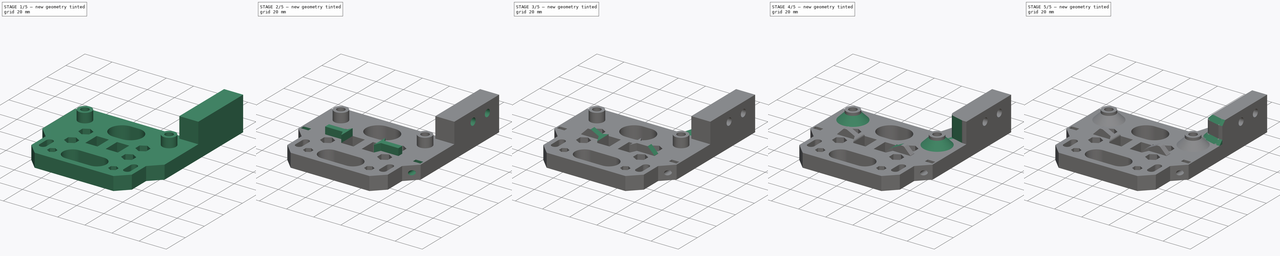
[diagram: build sequence overview — one tinted view per stage of 5, left to right]
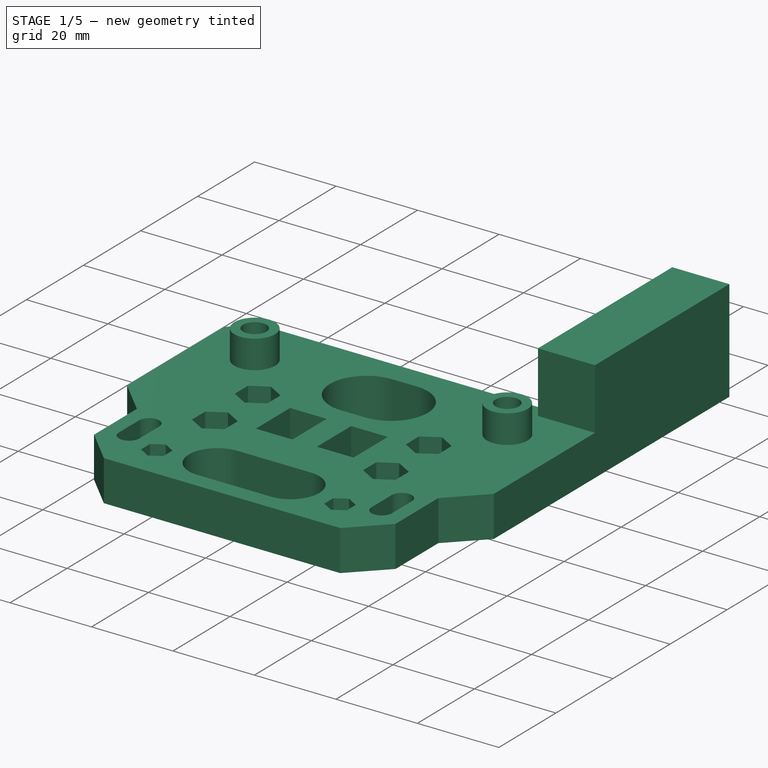
[diagram: stage 1 of 5 — iso view after this stage's code; geometry added in this stage tinted green]
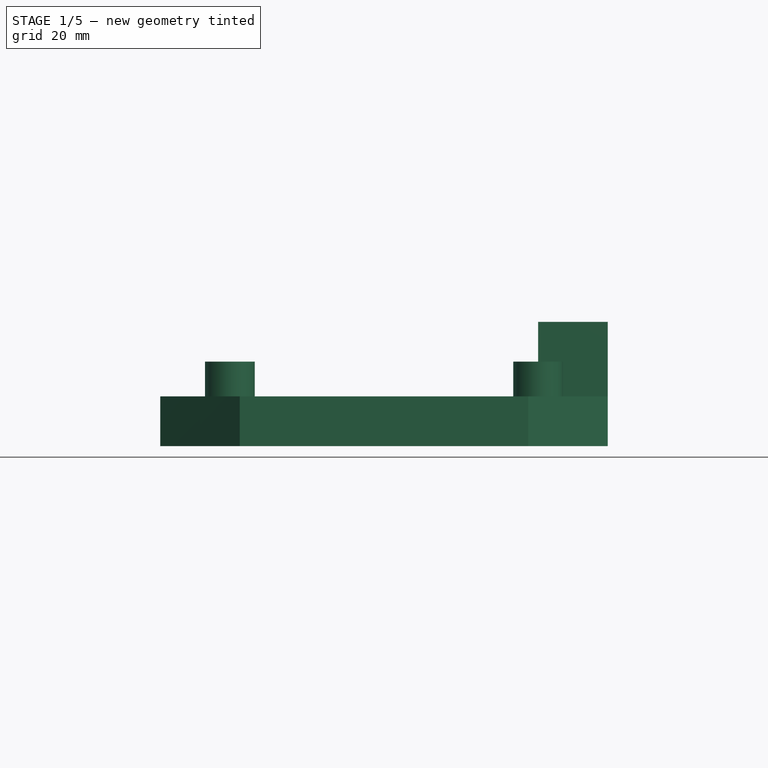
[diagram: stage 1 of 5 — front view after this stage's code; geometry added in this stage tinted green]
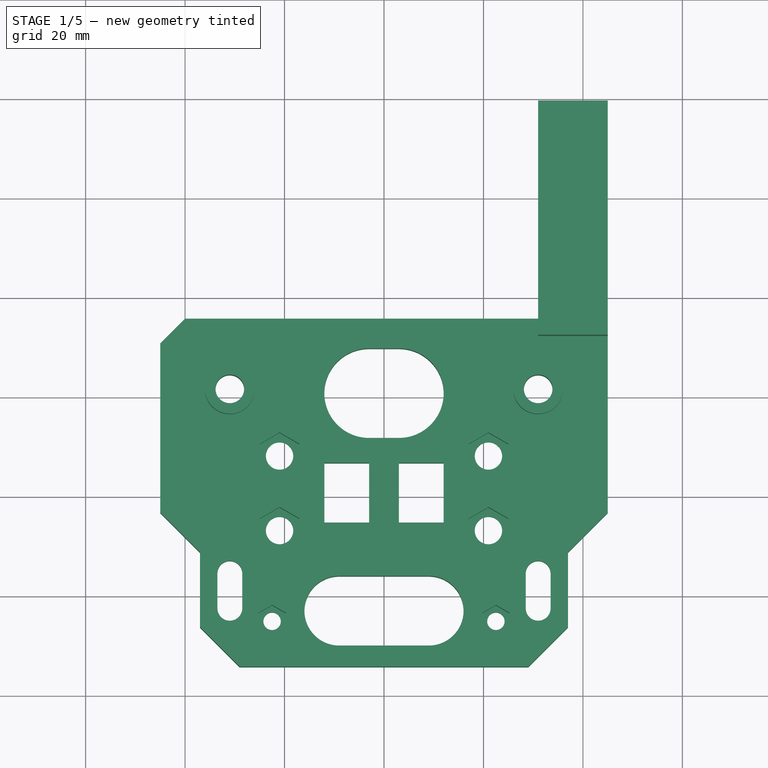
[diagram: stage 1 of 5 — top view after this stage's code; geometry added in this stage tinted green]
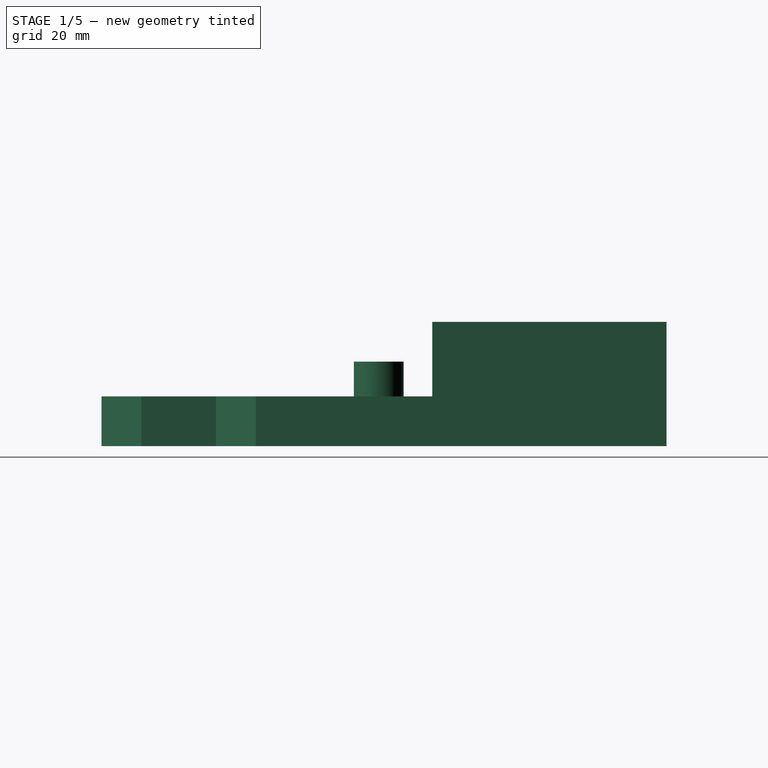
[diagram: stage 1 of 5 — right view after this stage's code; geometry added in this stage tinted green]
FCSTD DOCUMENT  (FreeCAD 0.19R24276 (Git))
Label: x-gantry-back
License: All rights reserved
LicenseURL: http://en.wikipedia.org/wiki/All_rights_reserved
objects: Sketcher::SketchObject×13, PartDesign::Plane×8, PartDesign::Chamfer×8, PartDesign::Pad×7, PartDesign::Pocket×5, PartDesign::Fillet×3, PartDesign::Hole×2, Part::Part2DObjectPython×1, PartDesign::Body×1
note: 73 computed .brp shape members not serialized (recipe doc carries the construction recipe); baked Part::Feature solids carry a one-line shape summary decoded from their .brp

FEATURE [Sketcher::SketchObject] Sketch016  label="Base001"
  FullyConstrained = true
  MapMode = 5
  Support = -> [XY_Plane001]
  expr: Constraints[150] = 39
  sketch-geometry (58):
    g0: LineSegment StartX=0 StartY=0 StartZ=0 EndX=0 EndY=41.5 EndZ=0
    g1: LineSegment StartX=-31 StartY=41.5 StartZ=0 EndX=31 EndY=41.5 EndZ=0
    g2: Circle CenterX=-31 CenterY=41.5 CenterZ=0 NormalX=0 NormalY=0 NormalZ=1 AngleXU=0 Radius=2.875
    g3: Circle CenterX=31 CenterY=41.5 CenterZ=0 NormalX=0 NormalY=0 NormalZ=1 AngleXU=0 Radius=2.875
    g4: ArcOfCircle CenterX=-31 CenterY=4.5 CenterZ=0 NormalX=0 NormalY=0 NormalZ=1 AngleXU=0 Radius=2.5 StartAngle=0 EndAngle=3.14159
    g5: ArcOfCircle CenterX=-31 CenterY=-2.5 CenterZ=0 NormalX=0 NormalY=0 NormalZ=1 AngleXU=0 Radius=2.5 StartAngle=3.14159 EndAngle=6.28319
    g6: LineSegment StartX=-33.5 StartY=4.5 StartZ=0 EndX=-33.5 EndY=-2.5 EndZ=0
    g7: LineSegment StartX=-28.5 StartY=4.5 StartZ=0 EndX=-28.5 EndY=-2.5 EndZ=0
    g8: Circle CenterX=-31 CenterY=41.5 CenterZ=0 NormalX=0 NormalY=0 NormalZ=1 AngleXU=0 Radius=12.5
    g9: Circle CenterX=31 CenterY=41.5 CenterZ=0 NormalX=0 NormalY=0 NormalZ=1 AngleXU=0 Radius=12.5
    g10: LineSegment StartX=45 StartY=55.75 StartZ=0 EndX=45 EndY=16.75 EndZ=0
    g11: LineSegment StartX=-45 StartY=16.75 StartZ=0 EndX=-45 EndY=50.75 EndZ=0
    g12: LineSegment StartX=-21 StartY=28.25 StartZ=0 EndX=-21 EndY=13.25 EndZ=0
    g13: LineSegment StartX=-12 StartY=26.75 StartZ=0 EndX=-3 EndY=26.75 EndZ=0
    g14: LineSegment StartX=-3 StartY=26.75 StartZ=0 EndX=-3 EndY=14.75 EndZ=0
    g15: LineSegment StartX=-3 StartY=14.75 StartZ=0 EndX=-12 EndY=14.75 EndZ=0
    g16: LineSegment StartX=-12 StartY=14.75 StartZ=0 EndX=-12 EndY=26.75 EndZ=0
    g17: Circle CenterX=-21 CenterY=28.25 CenterZ=0 NormalX=0 NormalY=0 NormalZ=1 AngleXU=0 Radius=2.75
    g18: Circle CenterX=-21 CenterY=13.25 CenterZ=0 NormalX=0 NormalY=0 NormalZ=1 AngleXU=0 Radius=2.75
    g19: LineSegment StartX=-21 StartY=20.75 StartZ=0 EndX=21 EndY=20.75 EndZ=0
    g20: LineSegment StartX=21 StartY=28.25 StartZ=0 EndX=21 EndY=13.25 EndZ=0
    g21: Circle CenterX=21 CenterY=28.25 CenterZ=0 NormalX=0 NormalY=0 NormalZ=1 AngleXU=0 Radius=2.75
    g22: Circle CenterX=21 CenterY=13.25 CenterZ=0 NormalX=0 NormalY=0 NormalZ=1 AngleXU=0 Radius=2.75
    g23: LineSegment StartX=3 StartY=26.75 StartZ=0 EndX=12 EndY=26.75 EndZ=0
    g24: LineSegment StartX=12 StartY=26.75 StartZ=0 EndX=12 EndY=14.75 EndZ=0
    g25: LineSegment StartX=12 StartY=14.75 StartZ=0 EndX=3 EndY=14.75 EndZ=0
    g26: LineSegment StartX=3 StartY=14.75 StartZ=0 EndX=3 EndY=26.75 EndZ=0
    g27: LineSegment StartX=-22.5 StartY=-5 StartZ=0 EndX=22.5 EndY=-5 EndZ=0
    g28: Circle CenterX=-22.5 CenterY=-5 CenterZ=0 NormalX=0 NormalY=0 NormalZ=1 AngleXU=0 Radius=1.75
    g29: Circle CenterX=22.5 CenterY=-5 CenterZ=0 NormalX=0 NormalY=0 NormalZ=1 AngleXU=0 Radius=1.75
    g30: ArcOfCircle CenterX=31 CenterY=4.5 CenterZ=0 NormalX=0 NormalY=0 NormalZ=1 AngleXU=0 Radius=2.5 StartAngle=0 EndAngle=3.14159
    g31: ArcOfCircle CenterX=31 CenterY=-2.5 CenterZ=0 NormalX=0 NormalY=0 NormalZ=1 AngleXU=0 Radius=2.5 StartAngle=3.14159 EndAngle=6.28319
    g32: LineSegment StartX=28.5 StartY=4.5 StartZ=0 EndX=28.5 EndY=-2.5 EndZ=0
    g33: LineSegment StartX=33.5 StartY=4.5 StartZ=0 EndX=33.5 EndY=-2.5 EndZ=0
    g34: LineSegment StartX=37 StartY=8.75 StartZ=0 EndX=37 EndY=-6.25 EndZ=0
    g35: LineSegment StartX=37 StartY=-6.25 StartZ=0 EndX=29 EndY=-14.25 EndZ=0
    g36: LineSegment StartX=-29 StartY=-14.25 StartZ=0 EndX=-37 EndY=-6.25 EndZ=0
    g37: LineSegment StartX=-37 StartY=-6.25 StartZ=0 EndX=-37 EndY=8.75 EndZ=0
    g38: LineSegment StartX=-37 StartY=8.75 StartZ=0 EndX=-45 EndY=16.75 EndZ=0
    g39: LineSegment StartX=37 StartY=8.75 StartZ=0 EndX=45 EndY=16.75 EndZ=0
    g40: LineSegment StartX=-29 StartY=-14.25 StartZ=0 EndX=29 EndY=-14.25 EndZ=0
    g41: ArcOfCircle CenterX=-9 CenterY=-3 CenterZ=0 NormalX=0 NormalY=0 NormalZ=1 AngleXU=0 Radius=7 StartAngle=1.5708 EndAngle=4.71239
    g42: ArcOfCircle CenterX=9 CenterY=-3 CenterZ=0 NormalX=0 NormalY=0 NormalZ=1 AngleXU=0 Radius=7 StartAngle=4.71239 EndAngle=7.85398
    g43: LineSegment StartX=-9 StartY=-10 StartZ=0 EndX=9 EndY=-10 EndZ=0
    g44: LineSegment StartX=-9 StartY=4 StartZ=0 EndX=9 EndY=4 EndZ=0
    g45: ArcOfCircle CenterX=-3 CenterY=40.75 CenterZ=0 NormalX=0 NormalY=0 NormalZ=1 AngleXU=0 Radius=9 StartAngle=1.5708 EndAngle=4.71239
    g46: ArcOfCircle CenterX=3 CenterY=40.75 CenterZ=0 NormalX=0 NormalY=0 NormalZ=1 AngleXU=0 Radius=9 StartAngle=4.71239 EndAngle=7.85398
    g47: LineSegment StartX=-3 StartY=31.75 StartZ=0 EndX=3 EndY=31.75 EndZ=0
    g48: LineSegment StartX=-3 StartY=49.75 StartZ=0 EndX=3 EndY=49.75 EndZ=0
    g49: LineSegment StartX=31 StartY=55.75 StartZ=0 EndX=31 EndY=65.75 EndZ=0
    g50: LineSegment StartX=31 StartY=65.75 StartZ=0 EndX=31 EndY=99.35 EndZ=0
    g51: LineSegment StartX=31 StartY=99.35 StartZ=0 EndX=45 EndY=99.35 EndZ=0
    g52: LineSegment StartX=45 StartY=99.35 StartZ=0 EndX=45 EndY=65.75 EndZ=0
    g53: LineSegment StartX=45 StartY=65.75 StartZ=0 EndX=45 EndY=55.75 EndZ=0
    g54: LineSegment StartX=31 StartY=55.75 StartZ=0 EndX=-40 EndY=55.75 EndZ=0
    g55: LineSegment StartX=-45 StartY=50.75 StartZ=0 EndX=-40 EndY=55.75 EndZ=0
    g56: LineSegment StartX=-45 StartY=50.75 StartZ=0 EndX=-45 EndY=55.75 EndZ=0
    g57: LineSegment StartX=-45 StartY=55.75 StartZ=0 EndX=-40 EndY=55.75 EndZ=0
  constraints (151):
    c: Coincident(g0,g-1)
    c: PointOnObject(g0,g1)
    c: Symmetric(g1,g1,g0)
    c: DistanceY(g0,g0) = 41.5
    c: DistanceX(g1,g1) = 62
    c: Coincident(g2,g1)
    c: Coincident(g3,g1)
    c: Tangent(g4,g7)
    c: Tangent(g4,g6)
    c: Tangent(g6,g5)
    c: Tangent(g7,g5)
    c: Vertical(g6)
    c: Coincident(g8,g2)
    c: Coincident(g9,g3)
    c: Diameter(g4) = 5
    c: DistanceY(g5,g4) = 7
    c: Diameter(g3) = 5.75
    c: Diameter(g2) = 5.75
    c: Diameter(g9) = 25
    c: Diameter(g8) = 25
    c: Vertical(g10)
    c: Vertical(g11)
    c: Symmetric(g56,g10,g-2)
    c: DistanceX(g56,g10) = 90
    c: DistanceY(g3,g10) = 14.25
    c: DistanceY(g12,g12) = 15
    c: Coincident(g13,g14)
    c: Coincident(g14,g15)
    c: Coincident(g15,g16)
    c: Coincident(g16,g13)
    c: Horizontal(g13)
    c: Horizontal(g15)
    c: Vertical(g14)
    c: DistanceX(g13,g13) = 9
    c: DistanceY(g16,g16) = 12
    c: Coincident(g17,g12)
    c: Coincident(g18,g12)
    c: Diameter(g17) = 5.5
    c: Diameter(g18) = 5.5
    c: PointOnObject(g19,g12)
    c: Symmetric(g19,g19,g-2)
    c: Symmetric(g17,g18,g19)
    c: Symmetric(g13,g15,g19)
    c: PointOnObject(g19,g20)
    c: Symmetric(g20,g20,g19)
    c: DistanceY(g20,g20) = 15
    c: Coincident(g22,g20)
    c: Diameter(g21) = 5.5
    c: Diameter(g22) = 5.5
    c: Symmetric(g0,g-1,g19)
    c: Distance(g13,g0) = 3
    c: Distance(g17,g0) = 21
    c: Coincident(g23,g24)
    c: Coincident(g24,g25)
    c: Coincident(g25,g26)
    c: Coincident(g26,g23)
    c: Horizontal(g23)
    c: Horizontal(g25)
    c: Vertical(g24)
    c: DistanceX(g23,g23) = 9
    c: DistanceY(g26,g26) = 12
    c: DistanceX(g-1,g23) = 3
    c: Symmetric(g23,g25,g19)
    c: Symmetric(g27,g27,g-2)
    c: DistanceY(g27,g-1) = 5
    c: DistanceX(g27,g27) = 45
    c: Coincident(g28,g27)
    c: Coincident(g29,g27)
    c: Diameter(g29) = 3.5
    c: DistanceY(g0,g4) = 4.5
    c: Vertical(g5,g4)
    c: Vertical(g4,g2)
    c: Tangent(g30,g33)
    c: Tangent(g30,g32)
    c: Tangent(g32,g31)
    c: Tangent(g33,g31)
    c: Vertical(g32)
    c: Equal(g4,g30) = 5
    c: Vertical(g31,g30)
    c: Horizontal(g30,g4)
    c: Vertical(g30,g3)
    c: Horizontal(g31,g5)
    c: Vertical(g34)
    c: Coincident(g35,g34)
    c: Coincident(g37,g36)
    c: Vertical(g37)
    c: Coincident(g38,g37)
    c: Coincident(g39,g34)
    c: Horizontal(g39,g38)
    c: Horizontal(g34,g37)
    c: DistanceX(g37,g34) = 74
    c: DistanceY(g35,g53) = 70
    c: Coincident(g40,g36)
    c: Coincident(g40,g35)
    c: Horizontal(g40)
    c: Angle(g34,g35) = 2.35619
    c: Angle(g36,g37) = 2.35619
    c: Horizontal(g36,g34)
    c: Coincident(g38,g11)
    c: Angle(g38,g11) = 2.35619
    c: DistanceY(g35,g34) = 8
    c: DistanceY(g34,g34) = 15
    c: Equal(g28,g29)
    c: Tangent(g41,g44) = 1.5708
    c: Tangent(g41,g43) = -1.5708
    c: Tangent(g43,g42) = -1.5708
    c: Tangent(g44,g42) = 1.5708
    c: Horizontal(g43)
    c: Symmetric(g41,g42,g0)
    c: Diameter(g42) = 14
    c: DistanceX(g44,g44) = 18
    c: DistanceY(g42,g0) = 3
    c: Vertical(g21,g22)
    c: Horizontal(g21,g17)
    c: Tangent(g45,g48) = 1.5708
    c: Tangent(g45,g47) = -1.5708
    c: Tangent(g47,g46) = -1.5708
    c: Tangent(g48,g46) = 1.5708
    c: Horizontal(g47)
    c: Symmetric(g45,g46,g-2)
    c: Vertical(g13,g45)
    c: Radius(g46) = 9
    c: DistanceY(g46,g53) = 6
    c: Coincident(g50,g49)
    c: Coincident(g51,g50)
    c: Coincident(g52,g51)
    c: Coincident(g53,g52)
    c: Vertical(g53)
    c: Distance(g51) = 14
    c: Perpendicular(g51,g50)
    c: Angle(g49,g50) = 3.14159
    c: Parallel(g52,g50)
    c: DistanceY(g53,g53) = 10
    c: Horizontal(g54)
    c: Vertical(g49)
    c: Coincident(g49,g54)
    c: DistanceY(g49,g50) = 43.6
    c: Horizontal(g49,g52)
    c: DistanceX(g56,g55) = 5
    c: DistanceY(g55,g56) = 5
    c: Coincident(g11,g55)
    c: Coincident(g56,g11)
    c: Vertical(g56)
    c: Coincident(g54,g55)
    c: Coincident(g57,g56)
    c: Coincident(g57,g54)
    c: Horizontal(g57)
    c: DistanceX(g54,g49) = 71
    c: DistanceY(g11,g11) = 34
    c: Coincident(g10,g39)
    c: DistanceY(g10,g53) = 39
FEATURE [PartDesign::Pad] Pad004
  AllowMultiFace = false
  Direction = (1,1,1)
  Length = 10
  Length2 = 100
  Profile = -> Sketch016
  Refine = true
  Type = 0
FEATURE [PartDesign::Plane] DatumPlane008
  Length = 111.158
  MapMode = 5
  Placement = pos=(0,0,10) rot=(0,0,1;0rad)
  ResizeMode = 0
  Support = -> [Pad004]
  Width = 145.508
FEATURE [Sketcher::SketchObject] Sketch017  label="WheelSpacers001"
  FullyConstrained = true
  MapMode = 5
  Placement = pos=(0,0,10) rot=(0,0,1;0rad)
  Support = -> [DatumPlane008]
  sketch-geometry (4):
    g0: Circle CenterX=-31 CenterY=41.5 CenterZ=0 NormalX=0 NormalY=0 NormalZ=1 AngleXU=0 Radius=2.875
    g1: Circle CenterX=-31 CenterY=41.5 CenterZ=0 NormalX=0 NormalY=0 NormalZ=1 AngleXU=0 Radius=5
    g2: Circle CenterX=31 CenterY=41.5 CenterZ=0 NormalX=0 NormalY=0 NormalZ=1 AngleXU=0 Radius=2.875
    g3: Circle CenterX=31 CenterY=41.5 CenterZ=0 NormalX=0 NormalY=0 NormalZ=1 AngleXU=0 Radius=5
  constraints (10):
    c: Coincident(g1,g0)
    c: Coincident(g3,g2)
    c: Diameter(g2) = 5.75
    c: Diameter(g3) = 10
    c: Diameter(g0) = 5.75
    c: Diameter(g1) = 10
    c: DistanceX(g0,g-1) = 31
    c: DistanceX(g-1,g2) = 31
    c: DistanceY(g-1,g0) = 41.5
    c: DistanceY(g-1,g2) = 41.5
FEATURE [PartDesign::Pad] Pad005
  AllowMultiFace = false
  BaseFeature = -> Pad004
  Direction = (1,1,1)
  Length = 7
  Length2 = 100
  Profile = -> Sketch017
  Refine = true
  Type = 0
FEATURE [Sketcher::SketchObject] Sketch018  label="M5Nuts001"
  FullyConstrained = true
  MapMode = 5
  Placement = pos=(0,0,10) rot=(0,0,1;0rad)
  Support = -> [DatumPlane008]
  sketch-geometry (42):
    g0: LineSegment StartX=-17 StartY=25.9406 StartZ=0 EndX=-17 EndY=30.5594 EndZ=0
    g1: LineSegment StartX=-17 StartY=30.5594 StartZ=0 EndX=-21 EndY=32.8688 EndZ=0
    g2: LineSegment StartX=-21 StartY=32.8688 StartZ=0 EndX=-25 EndY=30.5594 EndZ=0
    g3: LineSegment StartX=-25 StartY=30.5594 StartZ=0 EndX=-25 EndY=25.9406 EndZ=0
    g4: LineSegment StartX=-25 StartY=25.9406 StartZ=0 EndX=-21 EndY=23.6312 EndZ=0
    g5: LineSegment StartX=-21 StartY=23.6312 StartZ=0 EndX=-17 EndY=25.9406 EndZ=0
    g6: Circle CenterX=-21 CenterY=28.25 CenterZ=0 NormalX=0 NormalY=0 NormalZ=1 AngleXU=0 Radius=4.6188
    g7: LineSegment StartX=-17 StartY=10.9406 StartZ=0 EndX=-17 EndY=15.5594 EndZ=0
    g8: LineSegment StartX=-17 StartY=15.5594 StartZ=0 EndX=-21 EndY=17.8688 EndZ=0
    g9: LineSegment StartX=-21 StartY=17.8688 StartZ=0 EndX=-25 EndY=15.5594 EndZ=0
    g10: LineSegment StartX=-25 StartY=15.5594 StartZ=0 EndX=-25 EndY=10.9406 EndZ=0
    g11: LineSegment StartX=-25 StartY=10.9406 StartZ=0 EndX=-21 EndY=8.6312 EndZ=0
    g12: LineSegment StartX=-21 StartY=8.6312 StartZ=0 EndX=-17 EndY=10.9406 EndZ=0
    g13: Circle CenterX=-21 CenterY=13.25 CenterZ=0 NormalX=0 NormalY=0 NormalZ=1 AngleXU=0 Radius=4.6188
    g14: LineSegment StartX=-19.75 StartY=-6.58771 StartZ=0 EndX=-19.75 EndY=-3.41229 EndZ=0
    g15: LineSegment StartX=-19.75 StartY=-3.41229 StartZ=0 EndX=-22.5 EndY=-1.82457 EndZ=0
    g16: LineSegment StartX=-22.5 StartY=-1.82457 StartZ=0 EndX=-25.25 EndY=-3.41229 EndZ=0
    g17: LineSegment StartX=-25.25 StartY=-3.41229 StartZ=0 EndX=-25.25 EndY=-6.58771 EndZ=0
    g18: LineSegment StartX=-25.25 StartY=-6.58771 StartZ=0 EndX=-22.5 EndY=-8.17543 EndZ=0
    g19: LineSegment StartX=-22.5 StartY=-8.17543 StartZ=0 EndX=-19.75 EndY=-6.58771 EndZ=0
    g20: Circle CenterX=-22.5 CenterY=-5 CenterZ=0 NormalX=0 NormalY=0 NormalZ=1 AngleXU=0 Radius=3.17543
    g21: LineSegment StartX=25.25 StartY=-6.58771 StartZ=0 EndX=25.25 EndY=-3.41229 EndZ=0
    g22: LineSegment StartX=25.25 StartY=-3.41229 StartZ=0 EndX=22.5 EndY=-1.82457 EndZ=0
    g23: LineSegment StartX=22.5 StartY=-1.82457 StartZ=0 EndX=19.75 EndY=-3.41229 EndZ=0
    g24: LineSegment StartX=19.75 StartY=-3.41229 StartZ=0 EndX=19.75 EndY=-6.58771 EndZ=0
    g25: LineSegment StartX=19.75 StartY=-6.58771 StartZ=0 EndX=22.5 EndY=-8.17543 EndZ=0
    g26: LineSegment StartX=22.5 StartY=-8.17543 StartZ=0 EndX=25.25 EndY=-6.58771 EndZ=0
    g27: Circle CenterX=22.5 CenterY=-5 CenterZ=0 NormalX=0 NormalY=0 NormalZ=1 AngleXU=0 Radius=3.17543
    g28: LineSegment StartX=25 StartY=10.9406 StartZ=0 EndX=25 EndY=15.5594 EndZ=0
    g29: LineSegment StartX=25 StartY=15.5594 StartZ=0 EndX=21 EndY=17.8688 EndZ=0
    g30: LineSegment StartX=21 StartY=17.8688 StartZ=0 EndX=17 EndY=15.5594 EndZ=0
    g31: LineSegment StartX=17 StartY=15.5594 StartZ=0 EndX=17 EndY=10.9406 EndZ=0
    g32: LineSegment StartX=17 StartY=10.9406 StartZ=0 EndX=21 EndY=8.6312 EndZ=0
    g33: LineSegment StartX=21 StartY=8.6312 StartZ=0 EndX=25 EndY=10.9406 EndZ=0
    g34: Circle CenterX=21 CenterY=13.25 CenterZ=0 NormalX=0 NormalY=0 NormalZ=1 AngleXU=0 Radius=4.6188
    g35: LineSegment StartX=25 StartY=25.9406 StartZ=0 EndX=25 EndY=30.5594 EndZ=0
    g36: LineSegment StartX=25 StartY=30.5594 StartZ=0 EndX=21 EndY=32.8688 EndZ=0
    g37: LineSegment StartX=21 StartY=32.8688 StartZ=0 EndX=17 EndY=30.5594 EndZ=0
    g38: LineSegment StartX=17 StartY=30.5594 StartZ=0 EndX=17 EndY=25.9406 EndZ=0
    g39: LineSegment StartX=17 StartY=25.9406 StartZ=0 EndX=21 EndY=23.6312 EndZ=0
    g40: LineSegment StartX=21 StartY=23.6312 StartZ=0 EndX=25 EndY=25.9406 EndZ=0
    g41: Circle CenterX=21 CenterY=28.25 CenterZ=0 NormalX=0 NormalY=0 NormalZ=1 AngleXU=0 Radius=4.6188
  constraints (102):
    c: Coincident(g0,g1)
    c: Coincident(g1,g2)
    c: Coincident(g2,g3)
    c: Coincident(g3,g4)
    c: Coincident(g4,g5)
    c: Coincident(g5,g0)
    c: Equal(g0, g1-g5) x5
    c: PointOnObject(g0,g6)
    c: PointOnObject(g1,g6)
    c: PointOnObject(g2,g6)
    c: PointOnObject(g3,g6)
    c: PointOnObject(g4,g6)
    c: PointOnObject(g5,g6)
    c: Coincident(g7,g8)
    c: Coincident(g8,g9)
    c: Coincident(g9,g10)
    c: Coincident(g10,g11)
    c: Coincident(g11,g12)
    c: Coincident(g12,g7)
    c: Equal(g7, g8-g12) x5
    c: PointOnObject(g7,g13)
    c: PointOnObject(g8,g13)
    c: PointOnObject(g9,g13)
    c: PointOnObject(g10,g13)
    c: PointOnObject(g11,g13)
    c: PointOnObject(g12,g13)
    c: Coincident(g14,g15)
    c: Coincident(g15,g16)
    c: Coincident(g16,g17)
    c: Coincident(g17,g18)
    c: Coincident(g18,g19)
    c: Coincident(g19,g14)
    c: Equal(g14, g15-g19) x5
    c: PointOnObject(g14,g20)
    c: PointOnObject(g15,g20)
    c: PointOnObject(g16,g20)
    c: PointOnObject(g17,g20)
    c: PointOnObject(g18,g20)
    c: PointOnObject(g19,g20)
    c: Coincident(g21,g22)
    c: Coincident(g22,g23)
    c: Coincident(g23,g24)
    c: Coincident(g24,g25)
    c: Coincident(g25,g26)
    c: Coincident(g26,g21)
    c: Equal(g21, g22-g26) x5
    c: PointOnObject(g21,g27)
    c: PointOnObject(g22,g27)
    c: PointOnObject(g23,g27)
    c: PointOnObject(g24,g27)
    c: PointOnObject(g25,g27)
    c: PointOnObject(g26,g27)
    c: Coincident(g28,g29)
    c: Coincident(g29,g30)
    c: Coincident(g30,g31)
    c: Coincident(g31,g32)
    c: Coincident(g32,g33)
    c: Coincident(g33,g28)
    c: Equal(g28, g29-g33) x5
    c: PointOnObject(g28,g34)
    c: PointOnObject(g29,g34)
    c: PointOnObject(g30,g34)
    c: PointOnObject(g31,g34)
    c: PointOnObject(g32,g34)
    c: PointOnObject(g33,g34)
    c: Coincident(g35,g36)
    c: Coincident(g36,g37)
    c: Coincident(g37,g38)
    c: Coincident(g38,g39)
    c: Coincident(g39,g40)
    c: Coincident(g40,g35)
    c: Equal(g35, g36-g40) x5
    c: PointOnObject(g35,g41)
    c: PointOnObject(g36,g41)
    c: PointOnObject(g37,g41)
    c: PointOnObject(g38,g41)
    c: PointOnObject(g39,g41)
    c: PointOnObject(g40,g41)
    c: Vertical(g10)
    c: Vertical(g3)
    c: Vertical(g17)
    c: Vertical(g24)
    c: Vertical(g31)
    c: Vertical(g38)
    c: DistanceX(g20,g-1) = 22.5
    c: DistanceX(g-1,g27) = 22.5
    c: DistanceX(g-1,g34) = 21
    c: DistanceX(g-1,g41) = 21
    c: DistanceX(g13,g-1) = 21
    c: DistanceX(g6,g-1) = 21
    c: DistanceY(g-1,g13) = 13.25
    c: DistanceY(g-1,g34) = 13.25
    c: DistanceY(g-1,g41) = 28.25
    c: DistanceY(g-1,g6) = 28.25
    c: DistanceY(g20,g-1) = 5
    c: DistanceY(g27,g-1) = 5
    c: DistanceX(g2,g0) = 8
    c: Equal(g6,g13)
    c: Equal(g13,g34)
    c: Equal(g34,g41)
    c: DistanceX(g17,g14) = 5.5
    c: Equal(g20,g27)
FEATURE [PartDesign::Pocket] Pocket010  label="Topside M5 Nut Pockets"
  AllowMultiFace = false
  BaseFeature = -> Pad005
  Length = 7.5
  Length2 = 100
  Profile = -> Sketch018
  Refine = true
  Type = 0
FEATURE [Sketcher::SketchObject] Sketch013  label="CableSupport001"
  ExternalGeometry = -> [Pocket010]
  FullyConstrained = true
  MapMode = 5
  Placement = pos=(0,0,10) rot=(0,0,1;0rad)
  Support = -> [DatumPlane008]
  sketch-geometry (4):
    g0: LineSegment StartX=45 StartY=99.35 StartZ=0 EndX=45 EndY=52.25 EndZ=0
    g1: LineSegment StartX=45 StartY=52.25 StartZ=0 EndX=31 EndY=52.25 EndZ=0
    g2: LineSegment StartX=31 StartY=52.25 StartZ=0 EndX=31 EndY=99.35 EndZ=0
    g3: LineSegment StartX=31 StartY=99.35 StartZ=0 EndX=45 EndY=99.35 EndZ=0
  constraints (10):
    c: Coincident(g0,g1)
    c: Coincident(g1,g2)
    c: Horizontal(g1)
    c: Vertical(g0)
    c: Vertical(g2)
    c: Coincident(g0,g3)
    c: Coincident(g3,g2)
    c: Coincident(g2,g-4)
    c: DistanceY(g1,g-5) = 3.5
    c: Coincident(g0,g-4)
FEATURE [PartDesign::Plane] DatumPlane009  label="PartNumberPlane001"
  Length = 140.12
  MapMode = 5
  Placement = pos=(0,0,0) rot=(0.57735,0.57735,0.57735;2.0944rad)
  ResizeMode = 0
  Support = -> [YZ_Plane001]
  Width = 65.7702
FEATURE [Part::Part2DObjectPython] ShapeString002  label="PN001"  # Draft 2D object (typed FeaturePython)
  AttachmentOffset = pos=(56,3,18) rot=(0,1,0;1.5708rad)
  FontFile = ../../lib/fonts/RobotoMono-VariableFont_weight.ttf
  MapMode = 5
  Placement = pos=(18,56,3) rot=(0,0.707107,0.707107;3.14159rad)
  Size = 5
  String = FDM-0012-03
  Support = -> [YZ_Plane001]
  Tracking = 0
FEATURE [Sketcher::SketchObject] Sketch019  label="Verticalholes001"
  FullyConstrained = true
  MapMode = 5
  Placement = pos=(0,0,0) rot=(1,0,0;1.5708rad)
  Support = -> [XZ_Plane001]
  sketch-geometry (2):
    g0: Circle CenterX=-41.25 CenterY=5 CenterZ=0 NormalX=0 NormalY=0 NormalZ=1 AngleXU=0 Radius=2
    g1: Circle CenterX=41.25 CenterY=5 CenterZ=0 NormalX=0 NormalY=0 NormalZ=1 AngleXU=0 Radius=2
  constraints (5):
    c: DistanceX(g0,g1) = 82.5
    c: Symmetric(g0,g1,g-2)
    c: DistanceY(g-1,g0) = 5
    c: Equal(g1,g0)
    c: Diameter(g1) = 4
FEATURE [Sketcher::SketchObject] Sketch021
  FullyConstrained = true
  MapMode = 5
  Placement = pos=(0,0,10) rot=(0,0,1;0rad)
  Support = -> [DatumPlane008]
  sketch-geometry (12):
    g0: LineSegment StartX=-12 StartY=26.75 StartZ=0 EndX=-14.0637 EndY=23.1756 EndZ=0
    g1: LineSegment StartX=-14.0637 StartY=23.1756 StartZ=0 EndX=-27 EndY=23.1756 EndZ=0
    g2: LineSegment StartX=-27 StartY=23.1756 StartZ=0 EndX=-27 EndY=19.1756 EndZ=0
    g3: LineSegment StartX=-27 StartY=19.1756 StartZ=0 EndX=-14.0637 EndY=19.1756 EndZ=0
    g4: LineSegment StartX=-14.0637 StartY=19.1756 StartZ=0 EndX=-12 EndY=14.75 EndZ=0
    g5: LineSegment StartX=-12 StartY=14.75 StartZ=0 EndX=-12 EndY=26.75 EndZ=0
    g6: LineSegment StartX=12 StartY=26.75 StartZ=0 EndX=12 EndY=14.75 EndZ=0
    g7: LineSegment StartX=12 StartY=14.75 StartZ=0 EndX=14.0637 EndY=19.1756 EndZ=0
    g8: LineSegment StartX=14.0637 StartY=19.1756 StartZ=0 EndX=27 EndY=19.1756 EndZ=0
    g9: LineSegment StartX=27 StartY=19.1756 StartZ=0 EndX=27 EndY=23.1756 EndZ=0
    g10: LineSegment StartX=27 StartY=23.1756 StartZ=0 EndX=14.0637 EndY=23.1756 EndZ=0
    g11: LineSegment StartX=14.0637 StartY=23.1756 StartZ=0 EndX=12 EndY=26.75 EndZ=0
  constraints (36):
    c: Coincident(g0,g1)
    c: Horizontal(g1)
    c: Coincident(g1,g2)
    c: Vertical(g2)
    c: Coincident(g2,g3)
    c: Horizontal(g3)
    c: Coincident(g3,g4)
    c: Coincident(g4,g5)
    c: Coincident(g5,g0)
    c: Vertical(g5)
    c: DistanceX(g4,g-1) = 12
    c: DistanceY(g-1,g4) = 14.75
    c: DistanceY(g5,g5) = 12
    c: DistanceY(g2,g2) = 4
    c: Equal(g1,g3)
    c: Angle(g0,g5) = 0.523599
    c: Angle(g5,g4) = 0.436332
    c: DistanceX(g2,g4) = 15
    c: Vertical(g6)
    c: Coincident(g6,g7)
    c: Coincident(g7,g8)
    c: Horizontal(g8)
    c: Coincident(g8,g9)
    c: Coincident(g9,g10)
    c: Horizontal(g10)
    c: Coincident(g10,g11)
    c: Coincident(g11,g6)
    c: Vertical(g9)
    c: Equal(g10,g8)
    c: DistanceY(g6,g6) = 12
    c: DistanceY(g9,g9) = 4
    c: Angle(g6,g11) = 0.523599
    c: Angle(g7,g6) = 0.436332
    c: DistanceX(g-1,g6) = 12
    c: DistanceX(g6,g8) = 15
    c: DistanceY(g-1,g6) = 14.75
FEATURE [PartDesign::Pad] Pad007
  AllowMultiFace = false
  BaseFeature = -> Pocket010
  Direction = (1,1,1)
  Length = 15
  Length2 = 100
  Profile = -> Sketch013
  Type = 0
FEATURE [Sketcher::SketchObject] Sketch023  label="M5SlotCutOuts001"
  FullyConstrained = true
  MapMode = 5
  Support = -> [XY_Plane001]
  sketch-geometry (39):
    g0: LineSegment StartX=-27 StartY=39.1906 StartZ=0 EndX=-27 EndY=43.8094 EndZ=0
    g1: LineSegment StartX=-27 StartY=43.8094 StartZ=0 EndX=-31 EndY=46.1188 EndZ=0
    g2: LineSegment StartX=-31 StartY=46.1188 StartZ=0 EndX=-35 EndY=43.8094 EndZ=0
    g3: LineSegment StartX=-35 StartY=43.8094 StartZ=0 EndX=-35 EndY=39.1906 EndZ=0
    g4: LineSegment StartX=-35 StartY=39.1906 StartZ=0 EndX=-31 EndY=36.8812 EndZ=0
    g5: LineSegment StartX=-31 StartY=36.8812 StartZ=0 EndX=-27 EndY=39.1906 EndZ=0
    g6: Circle CenterX=-31 CenterY=41.5 CenterZ=0 NormalX=0 NormalY=0 NormalZ=1 AngleXU=0 Radius=4.6188
    g7: LineSegment StartX=35 StartY=39.1906 StartZ=0 EndX=35 EndY=43.8094 EndZ=0
    g8: LineSegment StartX=35 StartY=43.8094 StartZ=0 EndX=31 EndY=46.1188 EndZ=0
    g9: LineSegment StartX=31 StartY=46.1188 StartZ=0 EndX=27 EndY=43.8094 EndZ=0
    g10: LineSegment StartX=27 StartY=43.8094 StartZ=0 EndX=27 EndY=39.1906 EndZ=0
    g11: LineSegment StartX=27 StartY=39.1906 StartZ=0 EndX=31 EndY=36.8812 EndZ=0
    g12: LineSegment StartX=31 StartY=36.8812 StartZ=0 EndX=35 EndY=39.1906 EndZ=0
    g13: Circle CenterX=31 CenterY=41.5 CenterZ=0 NormalX=0 NormalY=0 NormalZ=1 AngleXU=0 Radius=4.6188
    g14: LineSegment StartX=-27 StartY=2.1906 StartZ=0 EndX=-27 EndY=6.8094 EndZ=0
    g15: LineSegment StartX=-27 StartY=6.8094 StartZ=0 EndX=-31 EndY=9.1188 EndZ=0
    g16: LineSegment StartX=-31 StartY=9.1188 StartZ=0 EndX=-35 EndY=6.8094 EndZ=0
    g17: LineSegment StartX=-35 StartY=6.8094 StartZ=0 EndX=-35 EndY=2.1906 EndZ=0
    g18: Circle CenterX=-31 CenterY=4.5 CenterZ=0 NormalX=0 NormalY=0 NormalZ=1 AngleXU=0 Radius=4.6188
    g19: LineSegment StartX=-27 StartY=-4.8094 StartZ=0 EndX=-27 EndY=-0.190599 EndZ=0
    g20: LineSegment StartX=-35 StartY=-0.190599 StartZ=0 EndX=-35 EndY=-4.8094 EndZ=0
    g21: LineSegment StartX=-35 StartY=-4.8094 StartZ=0 EndX=-31 EndY=-7.1188 EndZ=0
    g22: LineSegment StartX=-31 StartY=-7.1188 StartZ=0 EndX=-27 EndY=-4.8094 EndZ=0
    g23: Circle CenterX=-31 CenterY=-2.5 CenterZ=0 NormalX=0 NormalY=0 NormalZ=1 AngleXU=0 Radius=4.6188
    g24: LineSegment StartX=-31 StartY=41.5 StartZ=0 EndX=31 EndY=41.5 EndZ=0
    g25: LineSegment StartX=-35 StartY=2.1906 StartZ=0 EndX=-35 EndY=-0.190599 EndZ=0
    g26: LineSegment StartX=-27 StartY=2.1906 StartZ=0 EndX=-27 EndY=-0.190599 EndZ=0
    g27: LineSegment StartX=35 StartY=2.1906 StartZ=0 EndX=35 EndY=6.8094 EndZ=0
    g28: LineSegment StartX=35 StartY=6.8094 StartZ=0 EndX=31 EndY=9.1188 EndZ=0
    g29: LineSegment StartX=31 StartY=9.1188 StartZ=0 EndX=27 EndY=6.8094 EndZ=0
    g30: LineSegment StartX=27 StartY=6.8094 StartZ=0 EndX=27 EndY=2.1906 EndZ=0
    g31: Circle CenterX=31 CenterY=4.5 CenterZ=0 NormalX=0 NormalY=0 NormalZ=1 AngleXU=0 Radius=4.6188
    g32: LineSegment StartX=35 StartY=-4.8094 StartZ=0 EndX=35 EndY=-0.190599 EndZ=0
    g33: LineSegment StartX=27 StartY=-0.190599 StartZ=0 EndX=27 EndY=-4.8094 EndZ=0
    g34: LineSegment StartX=27 StartY=-4.8094 StartZ=0 EndX=31 EndY=-7.1188 EndZ=0
    g35: LineSegment StartX=31 StartY=-7.1188 StartZ=0 EndX=35 EndY=-4.8094 EndZ=0
    g36: Circle CenterX=31 CenterY=-2.5 CenterZ=0 NormalX=0 NormalY=0 NormalZ=1 AngleXU=0 Radius=4.6188
    g37: LineSegment StartX=27 StartY=2.1906 StartZ=0 EndX=27 EndY=-0.190599 EndZ=0
    g38: LineSegment StartX=35 StartY=2.1906 StartZ=0 EndX=35 EndY=-0.190599 EndZ=0
  constraints (107):
    c: Coincident(g0,g1)
    c: Coincident(g1,g2)
    c: Coincident(g2,g3)
    c: Coincident(g3,g4)
    c: Coincident(g4,g5)
    c: Coincident(g5,g0)
    c: Equal(g0, g1-g5) x5
    c: PointOnObject(g0,g6)
    c: PointOnObject(g1,g6)
    c: PointOnObject(g2,g6)
    c: PointOnObject(g3,g6)
    c: PointOnObject(g4,g6)
    c: PointOnObject(g5,g6)
    c: Coincident(g7,g8)
    c: Coincident(g8,g9)
    c: Coincident(g9,g10)
    c: Coincident(g10,g11)
    c: Coincident(g11,g12)
    c: Coincident(g12,g7)
    c: Equal(g7, g8-g12) x5
    c: PointOnObject(g7,g13)
    c: PointOnObject(g8,g13)
    c: PointOnObject(g9,g13)
    c: PointOnObject(g10,g13)
    c: PointOnObject(g11,g13)
    c: PointOnObject(g12,g13)
    c: Coincident(g14,g15)
    c: Coincident(g15,g16)
    c: Coincident(g16,g17)
    c: Equal(g14,g15)
    c: Equal(g14,g16)
    c: Equal(g14,g17)
    c: PointOnObject(g14,g18)
    c: PointOnObject(g15,g18)
    c: PointOnObject(g16,g18)
    c: PointOnObject(g17,g18)
    c: PointOnObject(g14,g18)
    c: Coincident(g20,g21)
    c: Coincident(g21,g22)
    c: Coincident(g22,g19)
    c: Equal(g19,g20)
    c: Equal(g19,g21)
    c: Equal(g19,g22)
    c: PointOnObject(g19,g23)
    c: PointOnObject(g20,g23)
    c: PointOnObject(g20,g23)
    c: PointOnObject(g21,g23)
    c: PointOnObject(g22,g23)
    c: Coincident(g24,g6)
    c: Coincident(g24,g13)
    c: Vertical(g0)
    c: Vertical(g10)
    c: Symmetric(g6,g13,g-2)
    c: DistanceX(g24,g24) = 62
    c: DistanceY(g-1,g6) = 41.5
    c: DistanceX(g2,g0) = 8
    c: DistanceX(g9,g7) = 8
    c: Vertical(g20)
    c: Vertical(g17)
    c: DistanceY(g-1,g18) = 4.5
    c: DistanceX(g16,g14) = 8
    c: DistanceX(g20,g19) = 8
    c: Vertical(g19)
    c: Vertical(g14)
    c: Coincident(g25,g17)
    c: Coincident(g25,g20)
    c: Coincident(g26,g14)
    c: Coincident(g26,g19)
    c: Vertical(g23,g18)
    c: Vertical(g18,g6)
    c: Coincident(g27,g28)
    c: Coincident(g28,g29)
    c: Coincident(g29,g30)
    c: Equal(g27,g28)
    c: Equal(g27,g29)
    c: Equal(g27,g30)
    c: PointOnObject(g27,g31)
    c: PointOnObject(g28,g31)
    c: PointOnObject(g29,g31)
    c: PointOnObject(g30,g31)
    c: PointOnObject(g27,g31)
    c: Coincident(g33,g34)
    c: Coincident(g34,g35)
    c: Coincident(g35,g32)
    c: Equal(g32,g33)
    c: Equal(g32,g34)
    c: Equal(g32,g35)
    c: PointOnObject(g32,g36)
    c: PointOnObject(g33,g36)
    c: PointOnObject(g33,g36)
    c: PointOnObject(g34,g36)
    c: PointOnObject(g35,g36)
    c: Vertical(g33)
    c: Vertical(g30)
    c: DistanceX(g29,g27) = 8
    c: DistanceX(g33,g32) = 8
    c: Vertical(g32)
    c: Vertical(g27)
    c: Coincident(g37,g30)
    c: Coincident(g37,g33)
    c: Coincident(g38,g27)
    c: Coincident(g38,g32)
    c: Vertical(g36,g31)
    c: Vertical(g31,g13)
    c: Horizontal(g15,g28)
    c: Horizontal(g21,g34)
    c: DistanceY(g23,g18) = 7
FEATURE [PartDesign::Pocket] Pocket014  label="M5 Sliding Nuts Pocket"
  AllowMultiFace = false
  BaseFeature = -> Pad007
  Length = 4.8
  Length2 = 100
  Profile = -> Sketch023
  Reversed = true
  Type = 0
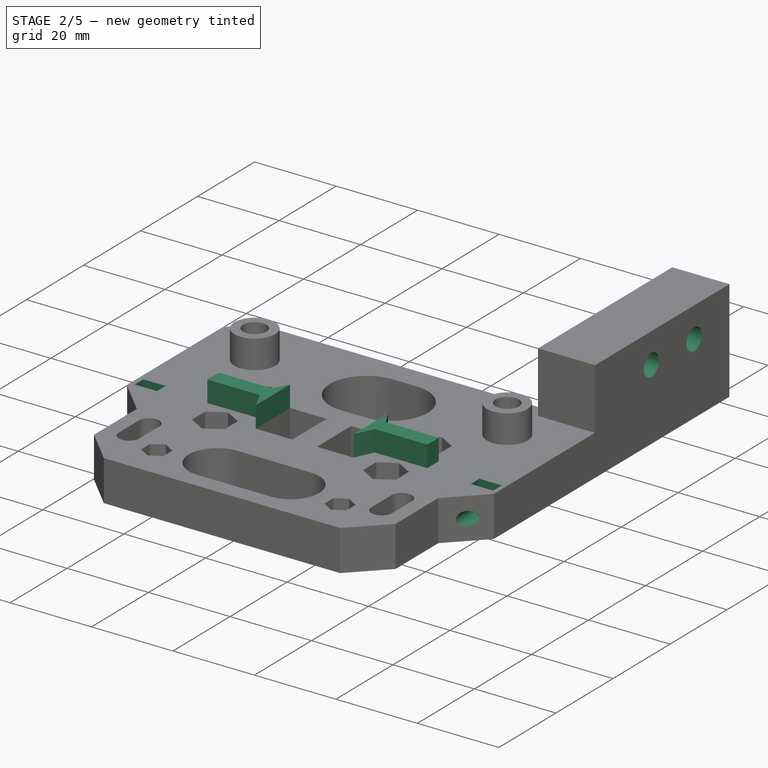
[diagram: stage 2 of 5 — iso view after this stage's code; geometry added in this stage tinted green]
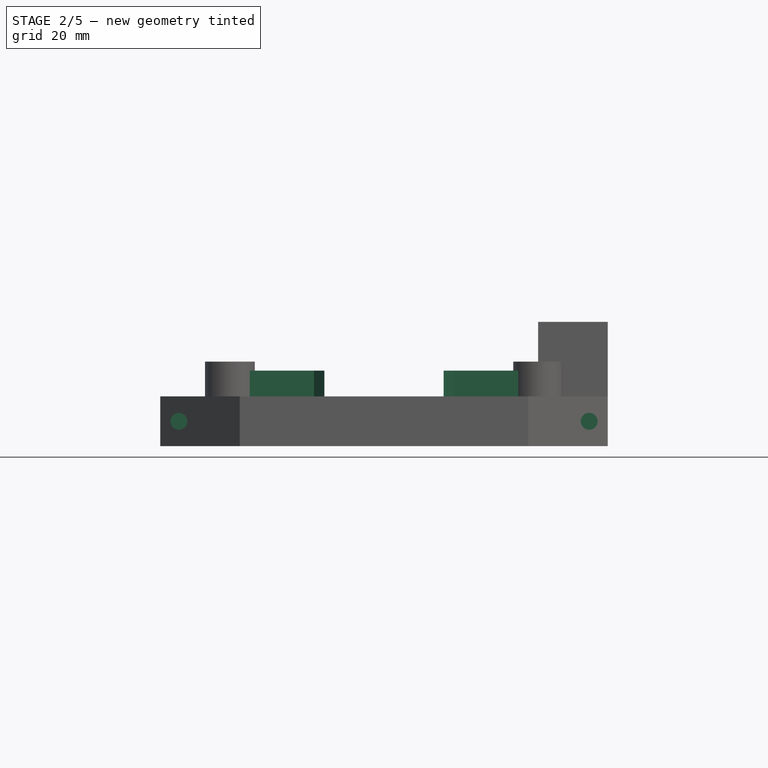
[diagram: stage 2 of 5 — front view after this stage's code; geometry added in this stage tinted green]
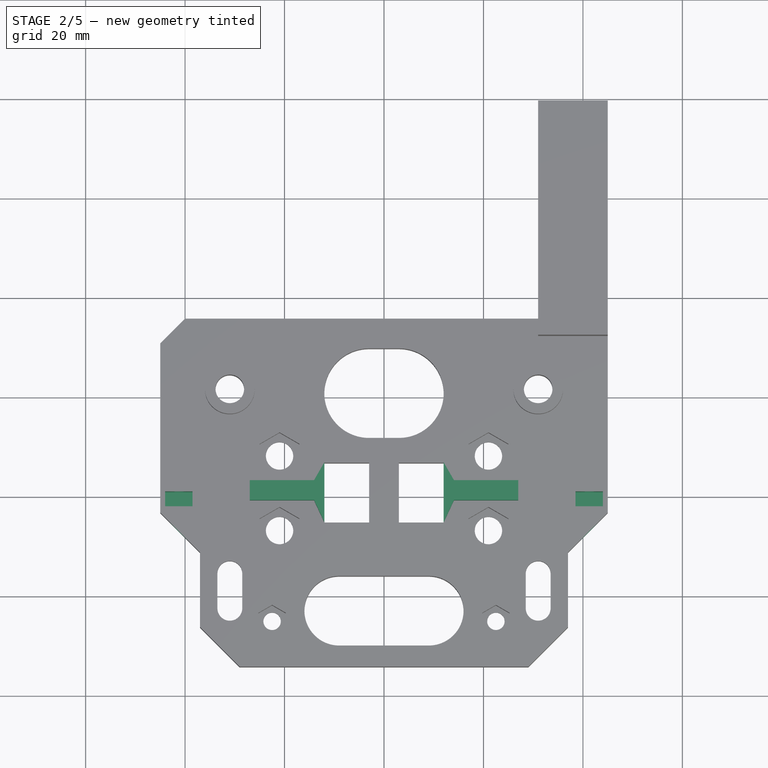
[diagram: stage 2 of 5 — top view after this stage's code; geometry added in this stage tinted green]
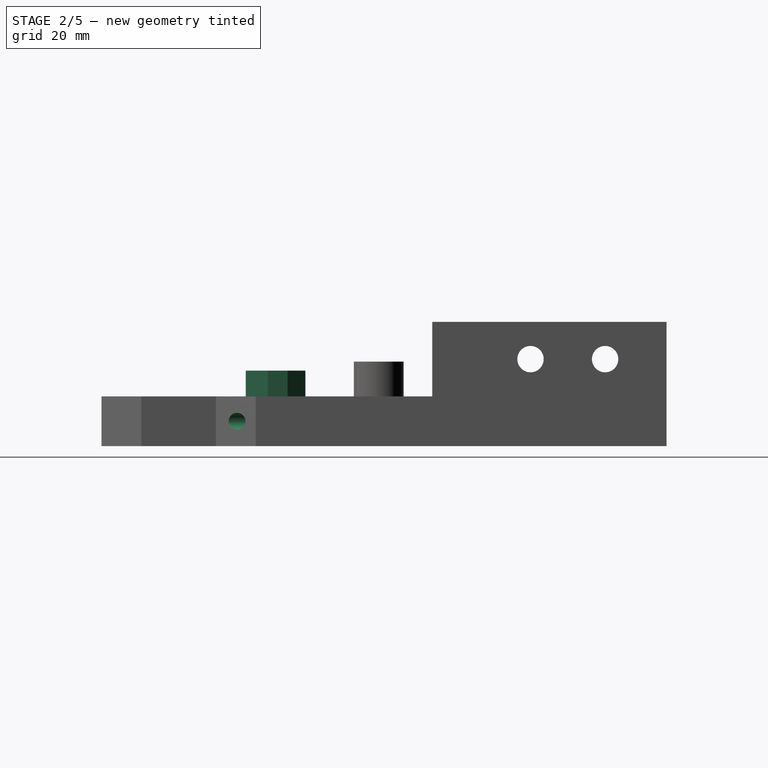
[diagram: stage 2 of 5 — right view after this stage's code; geometry added in this stage tinted green]
FEATURE [PartDesign::Pocket] Pocket012  label="Legacy Part Number Cutout [Need to Remove]"
  BaseFeature = -> Pocket014
  Length = 1
  Length2 = 100
  Profile = -> ShapeString002
  Type = 0
FEATURE [PartDesign::Hole] Hole001
  BaseFeature = -> Pocket012
  Depth = 35
  DepthType = 0
  Diameter = 3.4
  DrillForDepth = false
  DrillPoint = 0
  DrillPointAngle = 118
  HoleCutCountersinkAngle = 90
  HoleCutCustomValues = false
  HoleCutDepth = 0
  HoleCutDiameter = 6.1
  HoleCutType = 0
  ModelActualThread = false
  Profile = -> Sketch019
  Tapered = false
  TaperedAngle = 90
  ThreadAngle = 0
  ThreadClass = 0
  ThreadCutOffInner = 0
  ThreadCutOffOuter = 0
  ThreadDirection = 0
  ThreadFit = 0
  ThreadPitch = 0
  ThreadSize = 9
  ThreadType = 1
  Threaded = false
FEATURE [PartDesign::Plane] DatumPlane011
  AttachmentOffset = pos=(0,0,1.5) rot=(0,0,1;0rad)
  Length = 111.158
  MapMode = 5
  Placement = pos=(0,0,1.5) rot=(0,0,1;3.14159rad)
  ResizeMode = 0
  Support = -> [Hole001]
  Width = 145.508
FEATURE [Sketcher::SketchObject] Sketch020  label="NutPockets001"
  FullyConstrained = true
  MapMode = 5
  Placement = pos=(0,0,1.5) rot=(0,0,1;3.14159rad)
  Support = -> [DatumPlane011]
  sketch-geometry (10):
    g0: LineSegment StartX=-44 StartY=-18 StartZ=0 EndX=-38.5 EndY=-18 EndZ=0
    g1: LineSegment StartX=-38.5 StartY=-18 StartZ=0 EndX=-38.5 EndY=-21 EndZ=0
    g2: LineSegment StartX=-38.5 StartY=-21 StartZ=0 EndX=-44 EndY=-21 EndZ=0
    g3: LineSegment StartX=-44 StartY=-21 StartZ=0 EndX=-44 EndY=-18 EndZ=0
    g4: LineSegment StartX=38.5 StartY=-18 StartZ=0 EndX=44 EndY=-18 EndZ=0
    g5: LineSegment StartX=44 StartY=-18 StartZ=0 EndX=44 EndY=-21 EndZ=0
    g6: LineSegment StartX=44 StartY=-21 StartZ=0 EndX=38.5 EndY=-21 EndZ=0
    g7: LineSegment StartX=38.5 StartY=-21 StartZ=0 EndX=38.5 EndY=-18 EndZ=0
    g8: LineSegment StartX=-41.25 StartY=-19.5 StartZ=0 EndX=41.25 EndY=-19.5 EndZ=0
    g9: LineSegment StartX=-31.25 StartY=0 StartZ=0 EndX=31.25 EndY=0 EndZ=0
  constraints (29):
    c: Coincident(g0,g1)
    c: Coincident(g1,g2)
    c: Coincident(g2,g3)
    c: Coincident(g3,g0)
    c: Horizontal(g0)
    c: Horizontal(g2)
    c: Vertical(g1)
    c: Vertical(g3)
    c: Coincident(g4,g5)
    c: Coincident(g5,g6)
    c: Coincident(g6,g7)
    c: Coincident(g7,g4)
    c: Horizontal(g4)
    c: Horizontal(g6)
    c: Vertical(g5)
    c: Vertical(g7)
    c: Equal(g7,g1)
    c: Equal(g0,g4)
    c: DistanceX(g4,g4) = 5.5
    c: DistanceY(g5,g5) = 3
    c: Symmetric(g0,g1,g8)
    c: Symmetric(g6,g4,g8)
    c: DistanceX(g8,g8) = 82.5
    c: Symmetric(g8,g8,g-2)
    c: DistanceY(g8,g9) = 19.5
    c: DistanceY(g-1,g9) = 0
    c: DistanceX(g9,g9) = 62.5
    c: Symmetric(g9,g9,g-2)
    c: Horizontal(g9,g-1)
FEATURE [PartDesign::Pocket] Pocket013
  BaseFeature = -> Hole001
  Length = 10
  Length2 = 100
  Profile = -> Sketch020
  Reversed = true
  Type = 0
FEATURE [PartDesign::Pad] Pad006
  BaseFeature = -> Pocket013
  Direction = (1,1,1)
  Length = 5.2
  Length2 = 100
  Profile = -> Sketch021
  Type = 0
FEATURE [PartDesign::Plane] DatumPlane010  label="PrintPlane"
  Length = 111.158
  MapMode = 5
  Placement = pos=(0,0,0) rot=(1,0,0;3.14159rad)
  ResizeMode = 0
  Support = -> [Pad006]
  Width = 145.508
FEATURE [PartDesign::Plane] DatumPlane012
  Length = 140.12
  MapMode = 5
  Placement = pos=(45,0,0) rot=(0.57735,0.57735,0.57735;2.0944rad)
  ResizeMode = 0
  Support = -> [Pad006]
  Width = 65.7702
FEATURE [Sketcher::SketchObject] Sketch022
  ExternalGeometry = -> [Pad006]
  FullyConstrained = true
  MapMode = 5
  Placement = pos=(45,0,0) rot=(0.57735,0.57735,0.57735;2.0944rad)
  Support = -> [DatumPlane012]
  sketch-geometry (14):
    g0: LineSegment StartX=99.35 StartY=17.5 StartZ=0 EndX=52.25 EndY=17.5 EndZ=0
    g1: GeomPoint X=79.51 Y=17.5 Z=0
    g2: LineSegment StartX=79.51 StartY=17.5 StartZ=0 EndX=87.01 EndY=17.5 EndZ=0
    g3: LineSegment StartX=79.51 StartY=17.5 StartZ=0 EndX=72.01 EndY=17.5 EndZ=0
    g4: Circle CenterX=87.01 CenterY=17.5 CenterZ=0 NormalX=0 NormalY=0 NormalZ=1 AngleXU=0 Radius=2.5
    g5: Circle CenterX=72.01 CenterY=17.5 CenterZ=0 NormalX=0 NormalY=0 NormalZ=1 AngleXU=0 Radius=2.5
    g6: LineSegment StartX=60.76 StartY=-15 StartZ=0 EndX=98.26 EndY=-15 EndZ=0
    g7: LineSegment StartX=98.26 StartY=-15 StartZ=0 EndX=98.26 EndY=25 EndZ=0
    g8: LineSegment StartX=98.26 StartY=25 StartZ=0 EndX=60.76 EndY=25 EndZ=0
    g9: LineSegment StartX=60.76 StartY=25 StartZ=0 EndX=60.76 EndY=-15 EndZ=0
    g10: GeomPoint X=79.51 Y=25 Z=0
    g11: GeomPoint X=79.51 Y=25 Z=0
    g12: GeomPoint X=79.51 Y=25 Z=0
    g13: GeomPoint X=79.51 Y=25 Z=0
  constraints (31):
    c: Coincident(g2,g1)
    c: Horizontal(g2)
    c: Horizontal(g3)
    c: Coincident(g3,g2)
    c: Equal(g3,g2)
    c: Coincident(g4,g2)
    c: Coincident(g5,g3)
    c: Distance(g5,g4) = 15
    c: Equal(g4,g5)
    c: Radius(g4) = 2.5
    c: Coincident(g6,g7)
    c: Coincident(g7,g8)
    c: Coincident(g8,g9)
    c: Coincident(g9,g6)
    c: Horizontal(g6)
    c: Horizontal(g8)
    c: Vertical(g7)
    c: Vertical(g9)
    c: Coincident(g11,g10)
    c: Coincident(g12,g10)
    c: Coincident(g13,g10)
    c: Symmetric(g8,g8,g10)
    c: Vertical(g10,g1)
    c: DistanceY(g4,g7) = 7.5
    c: DistanceX(g8,g7) = 37.5
    c: DistanceY(g7,g7) = 40
    c: Horizontal(g0)
    c: PointOnObject(g0,g-6)
    c: Horizontal(g7,g-6)
    c: DistanceX(g1,g0) = 19.84
    c: Symmetric(g-4,g-4,g0)
FEATURE [PartDesign::Plane] DatumPlane013
  Length = 140.12
  MapMode = 5
  Placement = pos=(31,0,0) rot=(0.57735,-0.57735,-0.57735;2.0944rad)
  ResizeMode = 0
  Support = -> [Pad006]
  Width = 65.7702
FEATURE [PartDesign::Hole] Hole002
  BaseFeature = -> Pad006
  Depth = 25
  DepthType = 0
  Diameter = 5.3
  DrillForDepth = false
  DrillPoint = 1
  DrillPointAngle = 118
  HoleCutCountersinkAngle = 90
  HoleCutCustomValues = false
  HoleCutDepth = 0
  HoleCutDiameter = 6.1
  HoleCutType = 0
  ModelActualThread = false
  Profile = -> Sketch022
  Tapered = false
  TaperedAngle = 90
  ThreadAngle = 0
  ThreadClass = 0
  ThreadCutOffInner = 0
  ThreadCutOffOuter = 0
  ThreadDirection = 0
  ThreadFit = 1
  ThreadPitch = 0
  ThreadSize = 13
  ThreadType = 1
  Threaded = false
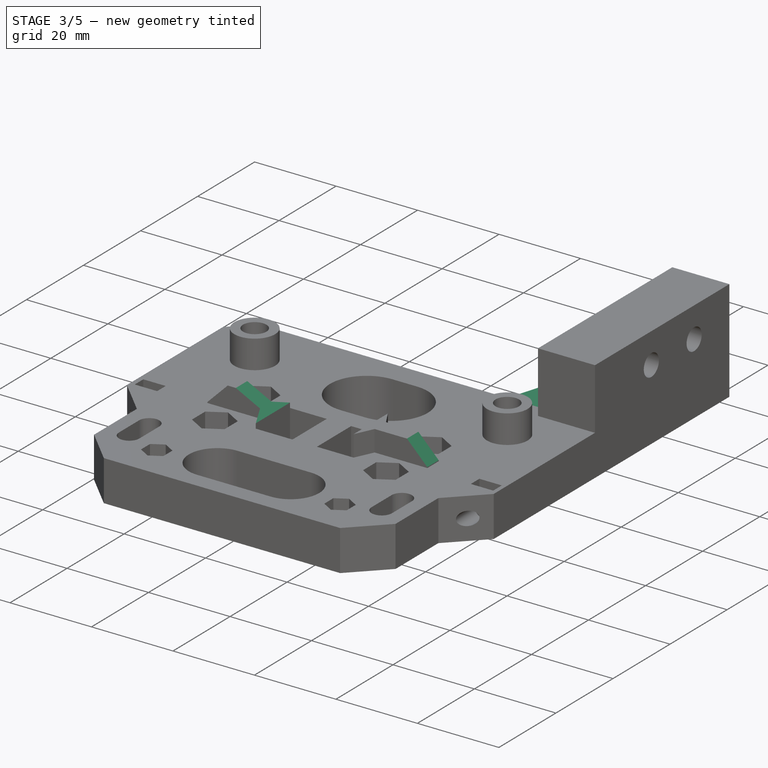
[diagram: stage 3 of 5 — iso view after this stage's code; geometry added in this stage tinted green]
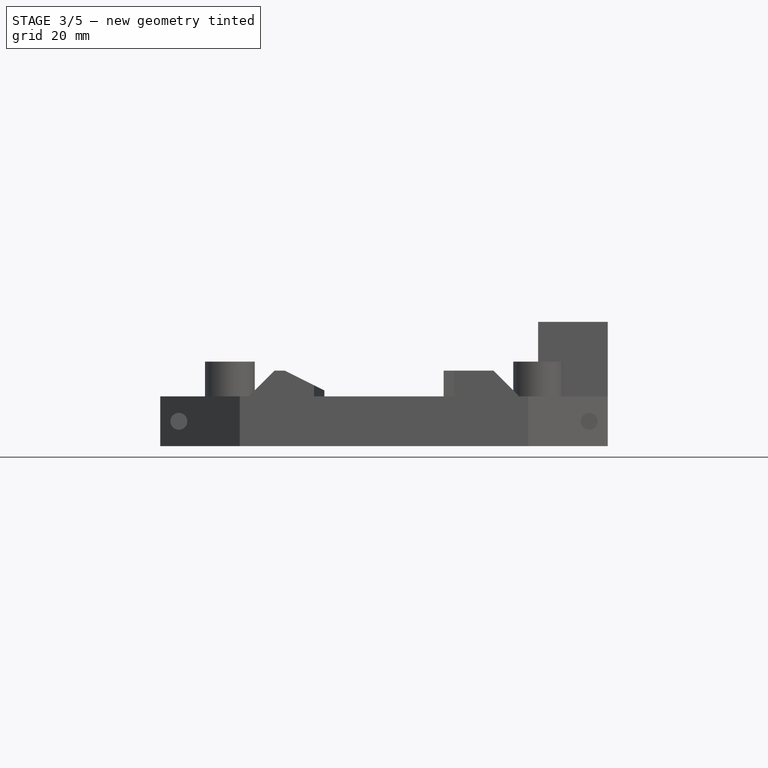
[diagram: stage 3 of 5 — front view after this stage's code; geometry added in this stage tinted green]
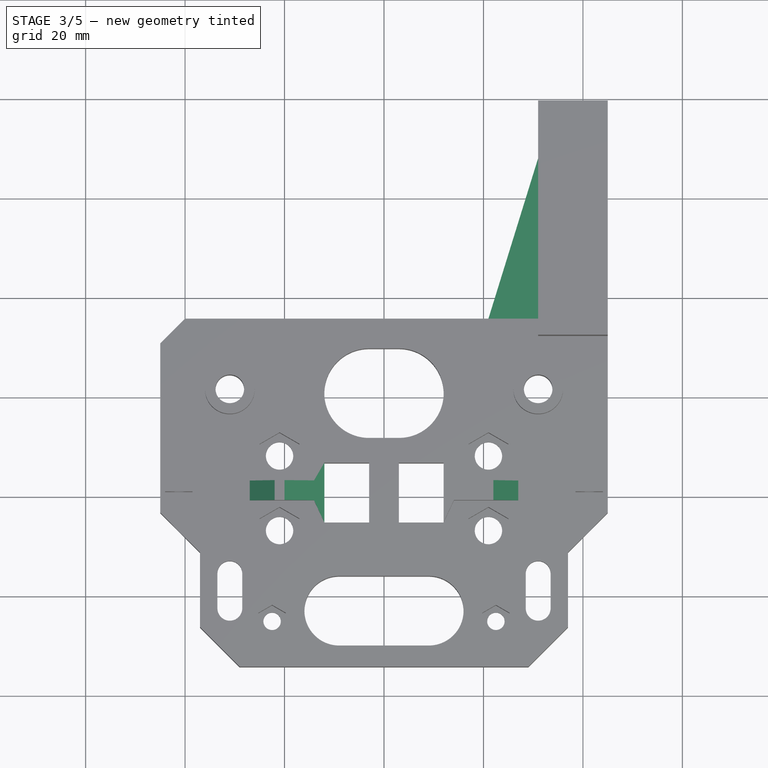
[diagram: stage 3 of 5 — top view after this stage's code; geometry added in this stage tinted green]
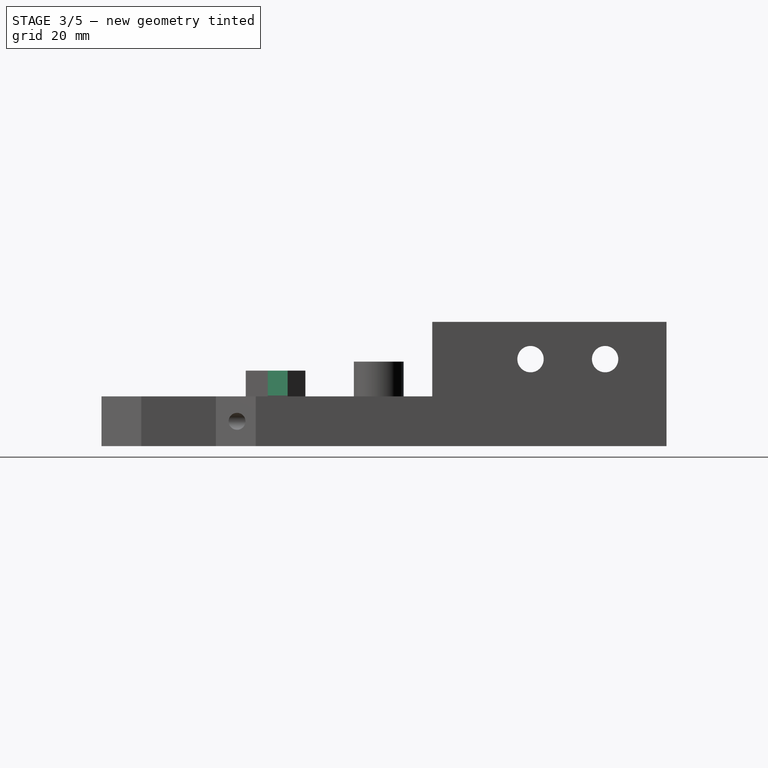
[diagram: stage 3 of 5 — right view after this stage's code; geometry added in this stage tinted green]
FEATURE [Sketcher::SketchObject] Sketch015
  ExternalGeometry = -> [Hole002]
  FullyConstrained = true
  MapMode = 5
  Placement = pos=(31,0,0) rot=(0.57735,-0.57735,-0.57735;2.0944rad)
  Support = -> [DatumPlane013]
  sketch-geometry (14):
    g0: LineSegment StartX=-84.7583 StartY=21.4 StartZ=0 EndX=-89.2617 EndY=21.4 EndZ=0
    g1: LineSegment StartX=-89.2617 StartY=21.4 StartZ=0 EndX=-91.5133 EndY=17.5 EndZ=0
    g2: LineSegment StartX=-91.5133 StartY=17.5 StartZ=0 EndX=-89.2617 EndY=13.6 EndZ=0
    g3: LineSegment StartX=-89.2617 StartY=13.6 StartZ=0 EndX=-84.7583 EndY=13.6 EndZ=0
    g4: LineSegment StartX=-84.7583 StartY=13.6 StartZ=0 EndX=-82.5067 EndY=17.5 EndZ=0
    g5: LineSegment StartX=-82.5067 StartY=17.5 StartZ=0 EndX=-84.7583 EndY=21.4 EndZ=0
    g6: Circle CenterX=-87.01 CenterY=17.5 CenterZ=0 NormalX=0 NormalY=0 NormalZ=1 AngleXU=0 Radius=4.50333
    g7: LineSegment StartX=-67.5067 StartY=17.5 StartZ=0 EndX=-69.7583 EndY=21.4 EndZ=0
    g8: LineSegment StartX=-69.7583 StartY=21.4 StartZ=0 EndX=-74.2617 EndY=21.4 EndZ=0
    g9: LineSegment StartX=-74.2617 StartY=21.4 StartZ=0 EndX=-76.5133 EndY=17.5 EndZ=0
    g10: LineSegment StartX=-76.5133 StartY=17.5 StartZ=0 EndX=-74.2617 EndY=13.6 EndZ=0
    g11: LineSegment StartX=-74.2617 StartY=13.6 StartZ=0 EndX=-69.7583 EndY=13.6 EndZ=0
    g12: LineSegment StartX=-69.7583 StartY=13.6 StartZ=0 EndX=-67.5067 EndY=17.5 EndZ=0
    g13: Circle CenterX=-72.01 CenterY=17.5 CenterZ=0 NormalX=0 NormalY=0 NormalZ=1 AngleXU=0 Radius=4.50333
  constraints (33):
    c: Coincident(g0,g1)
    c: Coincident(g1,g2)
    c: Coincident(g2,g3)
    c: Coincident(g3,g4)
    c: Coincident(g4,g5)
    c: Coincident(g5,g0)
    c: Equal(g0, g1-g5) x5
    c: PointOnObject(g0,g6)
    c: PointOnObject(g1,g6)
    c: PointOnObject(g2,g6)
    c: PointOnObject(g3,g6)
    c: PointOnObject(g4,g6)
    c: PointOnObject(g5,g6)
    c: Coincident(g6,g-3)
    c: Coincident(g7,g8)
    c: Coincident(g8,g9)
    c: Coincident(g9,g10)
    c: Coincident(g10,g11)
    c: Coincident(g11,g12)
    c: Coincident(g12,g7)
    c: Equal(g7, g8-g12) x5
    c: PointOnObject(g7,g13)
    c: PointOnObject(g8,g13)
    c: PointOnObject(g9,g13)
    c: PointOnObject(g10,g13)
    c: PointOnObject(g11,g13)
    c: PointOnObject(g12,g13)
    c: Equal(g6,g13)
    c: Horizontal(g0)
    c: Horizontal(g8)
    c: DistanceY(g3,g0) = 7.8
    c: Coincident(g13,g-5)
    c: Coincident(g6,g-6)
FEATURE [PartDesign::Pocket] Pocket011  label="Drag-Chain Mount Hex Nut Cutout"
  BaseFeature = -> Hole002
  Length = 7
  Length2 = 100
  Profile = -> Sketch015
  Type = 0
FEATURE [PartDesign::Chamfer] Chamfer
  Angle = 45
  Base = -> Pocket011 [Edge5]
  BaseFeature = -> Pocket011
  ChamferType = 1
  FlipDirection = true
  Size = 10
  Size2 = 32.28
  SupportTransform = false
FEATURE [PartDesign::Chamfer] Chamfer001
  Angle = 45
  Base = -> Chamfer [Edge603,Edge578]
  BaseFeature = -> Chamfer
  ChamferType = 0
  FlipDirection = false
  Size = 5
  Size2 = 1
  SupportTransform = false
FEATURE [PartDesign::Fillet] Fillet
  Base = -> Chamfer001 [Edge532,Edge539]
  BaseFeature = -> Chamfer001
  Radius = 3.5
  SupportTransform = false
FEATURE [PartDesign::Chamfer] Chamfer002
  Angle = 45
  Base = -> Fillet [Edge1060]
  BaseFeature = -> Fillet
  ChamferType = 1
  FlipDirection = false
  Size = 8
  Size2 = 4
  SupportTransform = false
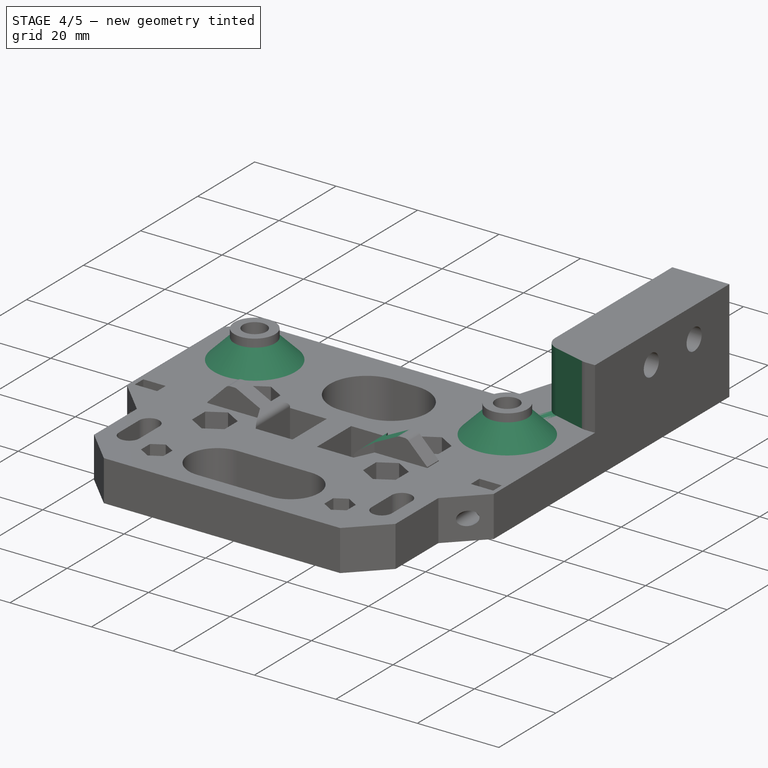
[diagram: stage 4 of 5 — iso view after this stage's code; geometry added in this stage tinted green]
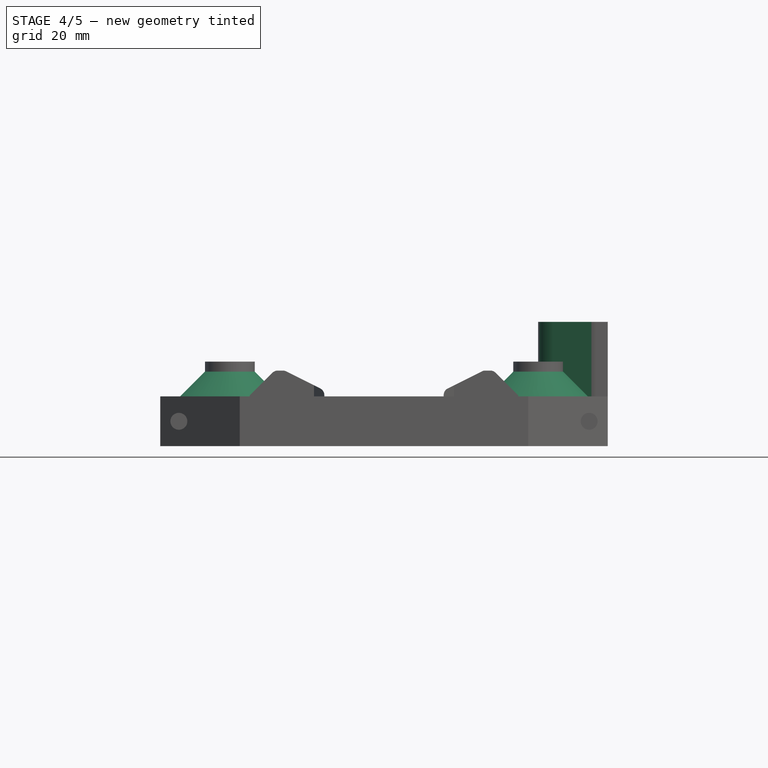
[diagram: stage 4 of 5 — front view after this stage's code; geometry added in this stage tinted green]
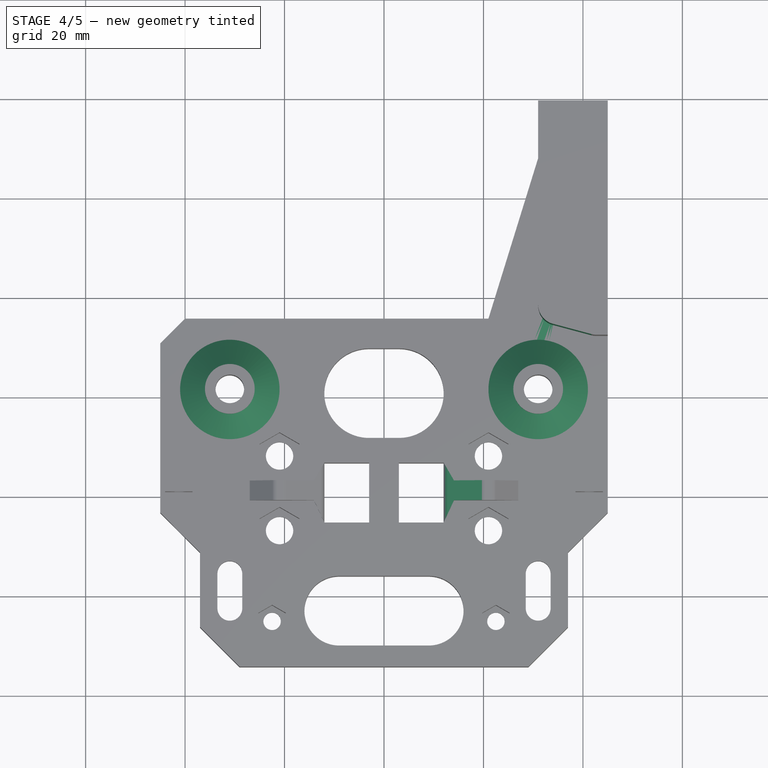
[diagram: stage 4 of 5 — top view after this stage's code; geometry added in this stage tinted green]
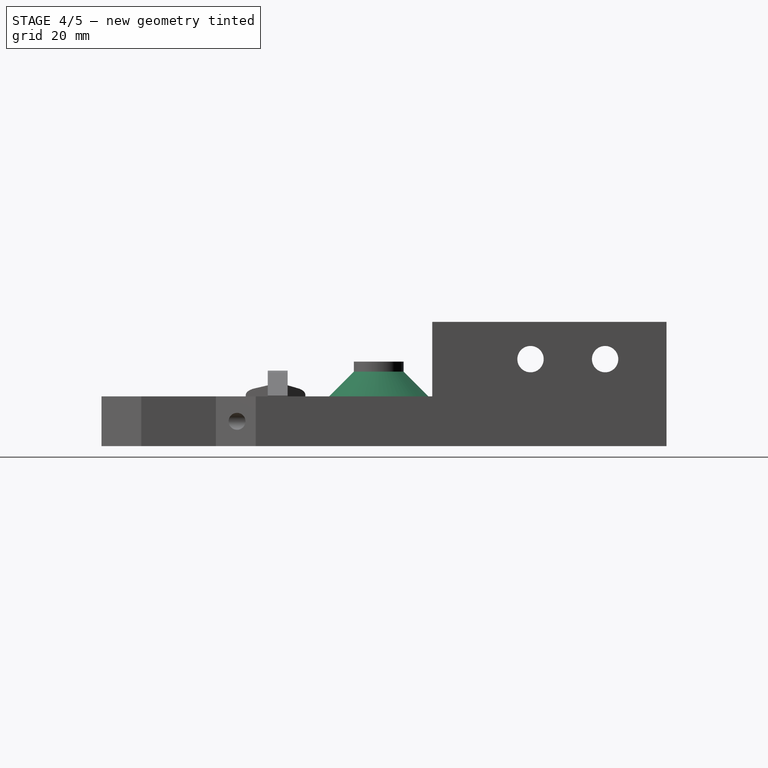
[diagram: stage 4 of 5 — right view after this stage's code; geometry added in this stage tinted green]
FEATURE [PartDesign::Chamfer] Chamfer003
  Angle = 45
  Base = -> Chamfer002 [Edge1010]
  BaseFeature = -> Chamfer002
  ChamferType = 1
  FlipDirection = false
  Size = 4
  Size2 = 8
  SupportTransform = false
FEATURE [PartDesign::Fillet] Fillet001
  Base = -> Chamfer003 [Edge6,Edge10,Edge1013,Edge1012,Edge1016,Edge114]
  BaseFeature = -> Chamfer003
  Radius = 1.5
  SupportTransform = false
FEATURE [PartDesign::Chamfer] Chamfer004
  Angle = 45
  Base = -> Fillet001 [Edge102,Edge83]
  BaseFeature = -> Fillet001
  ChamferType = 0
  FlipDirection = false
  Size = 5
  Size2 = 1
  SupportTransform = false
FEATURE [PartDesign::Chamfer] Chamfer005
  Angle = 75
  Base = -> Chamfer004 [Edge295]
  BaseFeature = -> Chamfer004
  ChamferType = 2
  FlipDirection = false
  Size = 3
  Size2 = 1
  SupportTransform = false
  expr: Angle = 75
FEATURE [PartDesign::Fillet] Fillet002
  Base = -> Chamfer005 [Edge96,Edge111]
  BaseFeature = -> Chamfer005
  Radius = 4
  SupportTransform = false
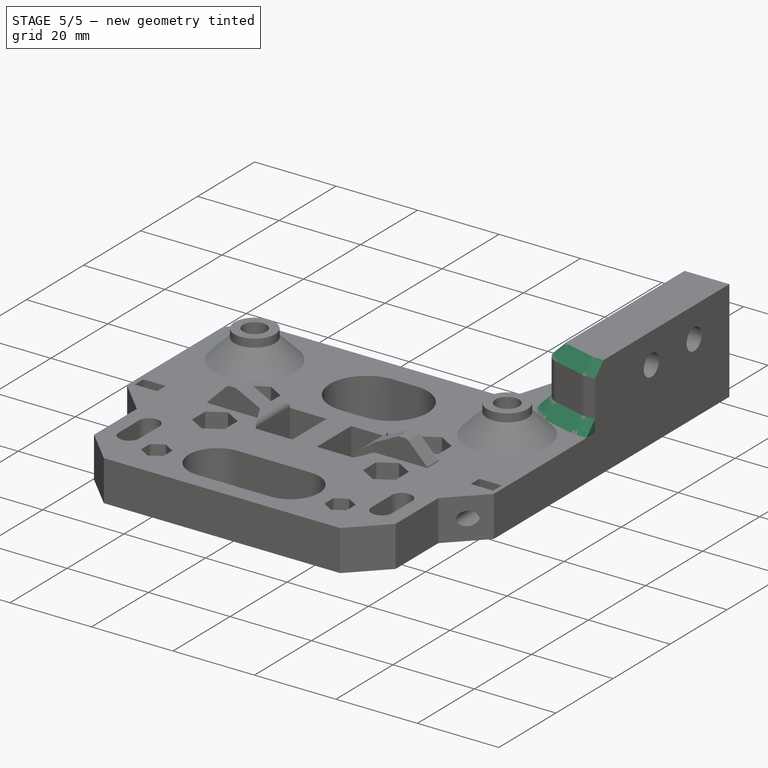
[diagram: stage 5 of 5 — iso view after this stage's code; geometry added in this stage tinted green]
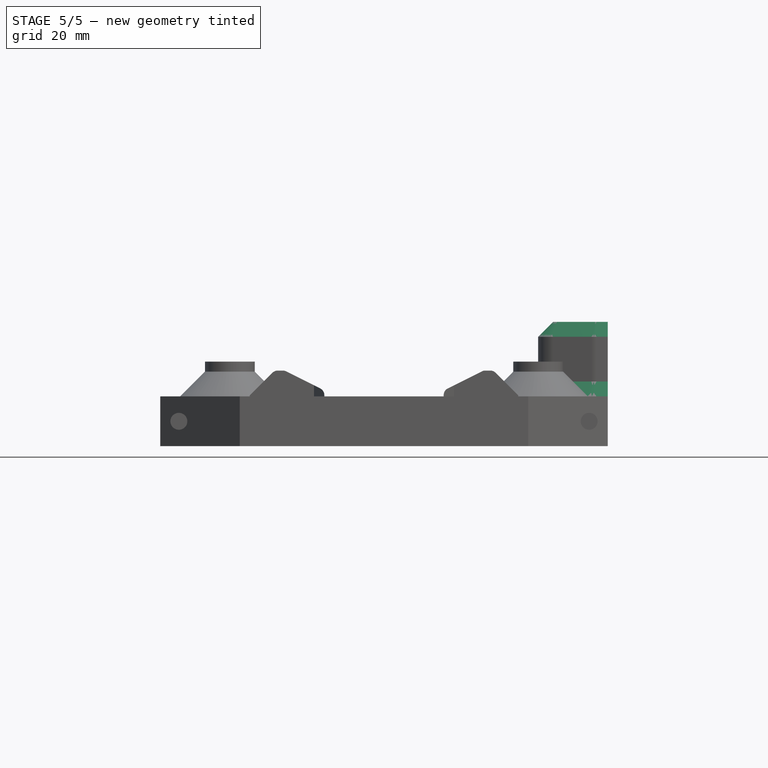
[diagram: stage 5 of 5 — front view after this stage's code; geometry added in this stage tinted green]
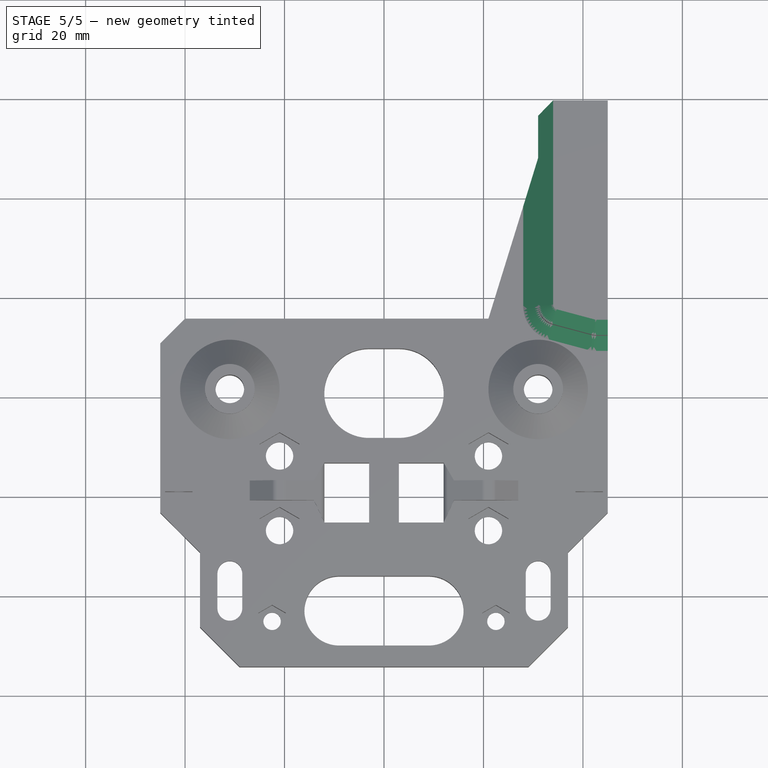
[diagram: stage 5 of 5 — top view after this stage's code; geometry added in this stage tinted green]
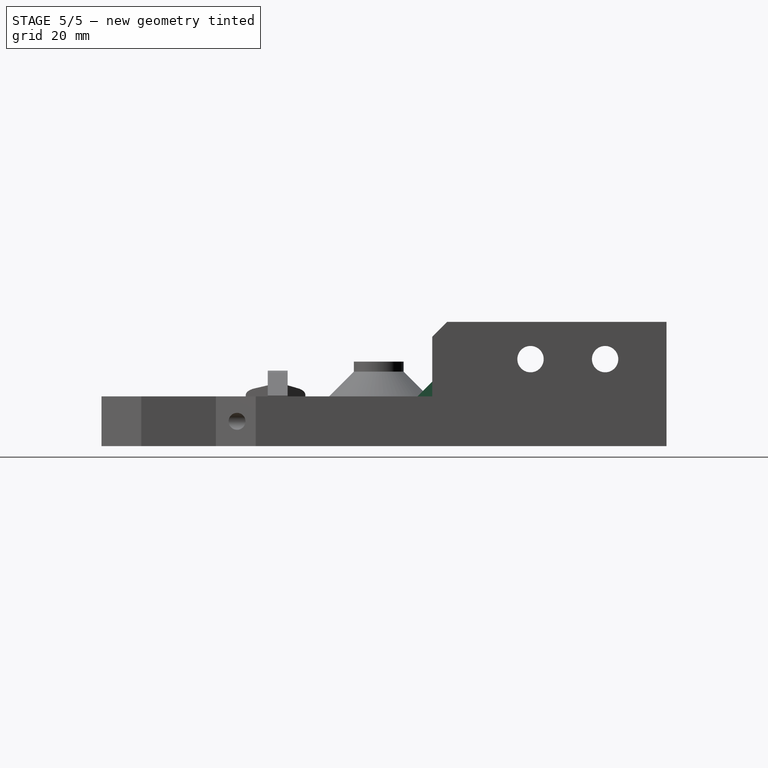
[diagram: stage 5 of 5 — right view after this stage's code; geometry added in this stage tinted green]
FEATURE [PartDesign::Chamfer] Chamfer006
  Angle = 45
  Base = -> Fillet002 [Edge5]
  BaseFeature = -> Fillet002
  ChamferType = 0
  FlipDirection = false
  Size = 3
  Size2 = 1
  SupportTransform = false
FEATURE [PartDesign::Chamfer] Chamfer007
  Angle = 45
  Base = -> Chamfer006 [Edge581,Edge525,Edge524]
  BaseFeature = -> Chamfer006
  ChamferType = 0
  FlipDirection = false
  Size = 3
  Size2 = 1
  SupportTransform = false
FEATURE [PartDesign::Plane] DatumPlane
  Length = 111.158
  MapMode = 5
  Placement = pos=(0,0,4.8) rot=(1,0,0;3.14159rad)
  ResizeMode = 0
  Support = -> [Chamfer007]
  Width = 145.508
FEATURE [Sketcher::SketchObject] Sketch
  ExternalGeometry = -> [Chamfer007]
  FullyConstrained = true
  MapMode = 5
  Placement = pos=(0,0,4.8) rot=(1,0,0;3.14159rad)
  Support = -> [DatumPlane]
  sketch-geometry (24):
    g0: LineSegment StartX=-34.6699 StartY=5 StartZ=0 EndX=-27.3301 EndY=5 EndZ=0
    g1: LineSegment StartX=-34.6699 StartY=5 StartZ=0 EndX=-31 EndY=7.1188 EndZ=0
    g2: LineSegment StartX=-31 StartY=7.1188 StartZ=0 EndX=-27.3301 EndY=5 EndZ=0
    g3: LineSegment StartX=-34.6699 StartY=-7 StartZ=0 EndX=-27.3301 EndY=-7 EndZ=0
    g4: LineSegment StartX=-34.6699 StartY=-7 StartZ=0 EndX=-31 EndY=-9.1188 EndZ=0
    g5: LineSegment StartX=-31 StartY=-9.1188 StartZ=0 EndX=-27.3301 EndY=-7 EndZ=0
    g6: LineSegment StartX=27.3301 StartY=5 StartZ=0 EndX=34.6699 EndY=5 EndZ=0
    g7: LineSegment StartX=27.3301 StartY=5 StartZ=0 EndX=31 EndY=7.1188 EndZ=0
    g8: LineSegment StartX=31 StartY=7.1188 StartZ=0 EndX=34.6699 EndY=5 EndZ=0
    g9: LineSegment StartX=27.3301 StartY=-7 StartZ=0 EndX=34.6699 EndY=-7 EndZ=0
    g10: LineSegment StartX=27.3301 StartY=-7 StartZ=0 EndX=31 EndY=-9.1188 EndZ=0
    g11: LineSegment StartX=31 StartY=-9.1188 StartZ=0 EndX=34.6699 EndY=-7 EndZ=0
    g12: LineSegment StartX=-34.0204 StartY=-38.625 StartZ=0 EndX=-27.9796 EndY=-38.625 EndZ=0
    g13: LineSegment StartX=-34.0204 StartY=-38.625 StartZ=0 EndX=-31 EndY=-36.8812 EndZ=0
    g14: LineSegment StartX=-31 StartY=-36.8812 StartZ=0 EndX=-27.9796 EndY=-38.625 EndZ=0
    g15: LineSegment StartX=-34.0204 StartY=-44.375 StartZ=0 EndX=-27.9796 EndY=-44.375 EndZ=0
    g16: LineSegment StartX=-34.0204 StartY=-44.375 StartZ=0 EndX=-31 EndY=-46.1188 EndZ=0
    g17: LineSegment StartX=-31 StartY=-46.1188 StartZ=0 EndX=-27.9796 EndY=-44.375 EndZ=0
    g18: LineSegment StartX=27.9796 StartY=-38.625 StartZ=0 EndX=34.0204 EndY=-38.625 EndZ=0
    g19: LineSegment StartX=27.9796 StartY=-38.625 StartZ=0 EndX=31 EndY=-36.8812 EndZ=0
    g20: LineSegment StartX=31 StartY=-36.8812 StartZ=0 EndX=34.0204 EndY=-38.625 EndZ=0
    g21: LineSegment StartX=27.9796 StartY=-44.375 StartZ=0 EndX=34.0204 EndY=-44.375 EndZ=0
    g22: LineSegment StartX=27.9796 StartY=-44.375 StartZ=0 EndX=31 EndY=-46.1188 EndZ=0
    g23: LineSegment StartX=31 StartY=-46.1188 StartZ=0 EndX=34.0204 EndY=-44.375 EndZ=0
  constraints (64):
    c: PointOnObject(g0,g-6)
    c: PointOnObject(g0,g-5)
    c: Horizontal(g0)
    c: Tangent(g0,g-3)
    c: Coincident(g1,g0)
    c: Coincident(g1,g-6)
    c: Coincident(g2,g0)
    c: Coincident(g-6,g2)
    c: Tangent(g3,g-4)
    c: Horizontal(g3)
    c: PointOnObject(g3,g-8)
    c: PointOnObject(g3,g-7)
    c: Coincident(g4,g3)
    c: Coincident(g4,g-8)
    c: Coincident(g5,g-8)
    c: Coincident(g5,g3)
    c: Horizontal(g6)
    c: Coincident(g7,g6)
    c: Coincident(g8,g6)
    c: Horizontal(g9)
    c: Tangent(g6,g-10)
    c: PointOnObject(g6,g-9)
    c: PointOnObject(g6,g-11)
    c: Coincident(g7,g8)
    c: Coincident(g7,g-11)
    c: Tangent(g9,g-12)
    c: Coincident(g10,g-14)
    c: Coincident(g11,g-14)
    c: Coincident(g11,g9)
    c: PointOnObject(g9,g-13)
    c: Coincident(g9,g10)
    c: PointOnObject(g9,g-14)
    c: Horizontal(g12)
    c: Coincident(g13,g12)
    c: Coincident(g14,g12)
    c: Horizontal(g15)
    c: Coincident(g16,g15)
    c: Coincident(g17,g15)
    c: PointOnObject(g12,g-17)
    c: PointOnObject(g12,g-16)
    c: Tangent(g12,g-15)
    c: Coincident(g13,g14)
    c: Coincident(g13,g-17)
    c: Tangent(g15,g-15)
    c: Coincident(g-20,g16)
    c: Coincident(g-20,g17)
    c: PointOnObject(g15,g-20)
    c: PointOnObject(g15,g-19)
    c: Horizontal(g18)
    c: Coincident(g19,g18)
    c: Coincident(g20,g18)
    c: Horizontal(g21)
    c: Coincident(g22,g21)
    c: Coincident(g23,g21)
    c: Coincident(g19,g20)
    c: Tangent(g18,g-22)
    c: Tangent(g21,g-22)
    c: Coincident(g22,g23)
    c: Coincident(g22,g-26)
    c: Coincident(g19,g-28)
    c: PointOnObject(g18,g-23)
    c: PointOnObject(g18,g-28)
    c: PointOnObject(g21,g-25)
    c: PointOnObject(g21,g-26)
FEATURE [Sketcher::SketchObject] Sketch024
  ExternalGeometry = -> [Chamfer007,Sketch]
  FullyConstrained = true
  MapMode = 5
  Placement = pos=(0,0,4.8) rot=(1,0,0;3.14159rad)
  Support = -> [DatumPlane]
  sketch-geometry (32):
    g0: LineSegment StartX=-33.5 StartY=5.67543 StartZ=0 EndX=-33.5 EndY=-7.67543 EndZ=0
    g1: LineSegment StartX=-35 StartY=-6.8094 StartZ=0 EndX=-35 EndY=4.8094 EndZ=0
    g2: LineSegment StartX=-35 StartY=4.8094 StartZ=0 EndX=-33.5 EndY=5.67543 EndZ=0
    g3: LineSegment StartX=-35 StartY=-6.8094 StartZ=0 EndX=-33.5 EndY=-7.67543 EndZ=0
    g4: LineSegment StartX=-28.5 StartY=5.67543 StartZ=0 EndX=-28.5 EndY=-7.67543 EndZ=0
    g5: LineSegment StartX=-28.5 StartY=5.67543 StartZ=0 EndX=-27 EndY=4.8094 EndZ=0
    g6: LineSegment StartX=-27 StartY=4.8094 StartZ=0 EndX=-27 EndY=-6.8094 EndZ=0
    g7: LineSegment StartX=-28.5 StartY=-7.67543 StartZ=0 EndX=-27 EndY=-6.8094 EndZ=0
    g8: LineSegment StartX=28.5 StartY=5.67543 StartZ=0 EndX=28.5 EndY=-7.67543 EndZ=0
    g9: LineSegment StartX=27 StartY=-6.8094 StartZ=0 EndX=27 EndY=4.8094 EndZ=0
    g10: LineSegment StartX=27 StartY=4.8094 StartZ=0 EndX=28.5 EndY=5.67543 EndZ=0
    g11: LineSegment StartX=27 StartY=-6.8094 StartZ=0 EndX=28.5 EndY=-7.67543 EndZ=0
    g12: LineSegment StartX=33.5 StartY=5.67543 StartZ=0 EndX=33.5 EndY=-7.67543 EndZ=0
    g13: LineSegment StartX=33.5 StartY=5.67543 StartZ=0 EndX=35 EndY=4.8094 EndZ=0
    g14: LineSegment StartX=35 StartY=4.8094 StartZ=0 EndX=35 EndY=-6.8094 EndZ=0
    g15: LineSegment StartX=33.5 StartY=-7.67543 StartZ=0 EndX=35 EndY=-6.8094 EndZ=0
    g16: LineSegment StartX=-33.875 StartY=-38.5411 StartZ=0 EndX=-33.875 EndY=-44.4589 EndZ=0
    g17: LineSegment StartX=-35 StartY=-43.8094 StartZ=0 EndX=-35 EndY=-39.1906 EndZ=0
    g18: LineSegment StartX=-35 StartY=-39.1906 StartZ=0 EndX=-33.875 EndY=-38.5411 EndZ=0
    g19: LineSegment StartX=-35 StartY=-43.8094 StartZ=0 EndX=-33.875 EndY=-44.4589 EndZ=0
    g20: LineSegment StartX=-28.125 StartY=-38.5411 StartZ=0 EndX=-28.125 EndY=-44.4589 EndZ=0
    g21: LineSegment StartX=-28.125 StartY=-38.5411 StartZ=0 EndX=-27 EndY=-39.1906 EndZ=0
    g22: LineSegment StartX=-27 StartY=-39.1906 StartZ=0 EndX=-27 EndY=-43.8094 EndZ=0
    g23: LineSegment StartX=-28.125 StartY=-44.4589 StartZ=0 EndX=-27 EndY=-43.8094 EndZ=0
    g24: LineSegment StartX=28.125 StartY=-38.5411 StartZ=0 EndX=28.125 EndY=-44.4589 EndZ=0
    g25: LineSegment StartX=27 StartY=-43.8094 StartZ=0 EndX=27 EndY=-39.1906 EndZ=0
    g26: LineSegment StartX=27 StartY=-39.1906 StartZ=0 EndX=28.125 EndY=-38.5411 EndZ=0
    g27: LineSegment StartX=27 StartY=-43.8094 StartZ=0 EndX=28.125 EndY=-44.4589 EndZ=0
    g28: LineSegment StartX=33.875 StartY=-38.5411 StartZ=0 EndX=33.875 EndY=-44.4589 EndZ=0
    g29: LineSegment StartX=33.875 StartY=-38.5411 StartZ=0 EndX=35 EndY=-39.1906 EndZ=0
    g30: LineSegment StartX=35 StartY=-39.1906 StartZ=0 EndX=35 EndY=-43.8094 EndZ=0
    g31: LineSegment StartX=33.875 StartY=-44.4589 StartZ=0 EndX=35 EndY=-43.8094 EndZ=0
  constraints (86):
    c: PointOnObject(g0,g-7)
    c: PointOnObject(g0,g-10)
    c: Vertical(g0)
    c: PointOnObject(g-3,g0)
    c: Coincident(g1,g-10)
    c: Coincident(g1,g-7)
    c: Coincident(g2,g-7)
    c: Coincident(g2,g0)
    c: Coincident(g3,g-10)
    c: Coincident(g3,g0)
    c: PointOnObject(g4,g-8)
    c: PointOnObject(g4,g-9)
    c: Vertical(g4)
    c: PointOnObject(g-4,g4)
    c: Coincident(g5,g4)
    c: Coincident(g5,g-8)
    c: Coincident(g6,g-8)
    c: Coincident(g6,g-9)
    c: Coincident(g7,g4)
    c: Coincident(g7,g-9)
    c: Vertical(g8)
    c: Coincident(g10,g8)
    c: Coincident(g11,g8)
    c: Vertical(g12)
    c: Coincident(g13,g12)
    c: Coincident(g15,g12)
    c: PointOnObject(g8,g-15)
    c: Coincident(g9,g11)
    c: Coincident(g9,g-18)
    c: PointOnObject(g-16,g8)
    c: PointOnObject(g8,g-12)
    c: Coincident(g9,g10)
    c: Coincident(g9,g-12)
    c: Coincident(g13,g14)
    c: Coincident(g13,g-19)
    c: PointOnObject(g12,g-13)
    c: PointOnObject(g-16,g12)
    c: PointOnObject(g12,g-14)
    c: Coincident(g14,g-14)
    c: Coincident(g15,g-14)
    c: Vertical(g16)
    c: Coincident(g18,g16)
    c: Coincident(g19,g16)
    c: Vertical(g20)
    c: Coincident(g21,g20)
    c: Coincident(g23,g20)
    c: Coincident(g21,g22)
    c: Coincident(g17,g18)
    c: Coincident(g23,g22)
    c: Vertical(g22)
    c: Coincident(g17,g19)
    c: Vertical(g17)
    c: Horizontal(g20,g16)
    c: Horizontal(g16,g20)
    c: Equal(g19,g18)
    c: Equal(g18,g21)
    c: Equal(g21,g23)
    c: Equal(g22,g17)
    c: Vertical(g24)
    c: Coincident(g26,g24)
    c: Coincident(g27,g24)
    c: Vertical(g28)
    c: Coincident(g29,g28)
    c: Coincident(g31,g28)
    c: Coincident(g29,g30)
    c: Coincident(g25,g26)
    c: Coincident(g31,g30)
    c: Vertical(g30)
    c: Coincident(g25,g27)
    c: Vertical(g25)
    c: Horizontal(g28,g24)
    c: Horizontal(g24,g28)
    c: Equal(g27,g26)
    c: Equal(g26,g29)
    c: Equal(g29,g31)
    c: Equal(g30,g25)
    c: Tangent(g16,g-26)
    c: Tangent(g20,g-26)
    c: PointOnObject(g16,g-20)
    c: Coincident(g17,g-21)
    c: PointOnObject(g16,g-22)
    c: PointOnObject(g24,g-33)
    c: Tangent(g24,g-27)
    c: Tangent(g28,g-27)
    c: PointOnObject(g24,g-31)
    c: Coincident(g25,g-32)
FEATURE [PartDesign::Pad] Pad  label="Mid-Air Hole Cleanup - Step #1"
  BaseFeature = -> Chamfer007
  Direction = (1,1,1)
  Length = 0.4
  Length2 = 100
  Profile = -> Sketch
  Type = 0
FEATURE [PartDesign::Pad] Pad008  label="Mid-Air Hole Cleanup - Step #2"
  BaseFeature = -> Pad
  Direction = (1,1,1)
  Length = 0.8
  Length2 = 100
  Profile = -> Sketch024
  Type = 0
FEATURE [PartDesign::Plane] DatumPlane014
  Length = 103.416
  MapMode = 5
  Placement = pos=(0,55.75,0) rot=(0,0.707107,0.707107;3.14159rad)
  ResizeMode = 0
  Support = -> [Pad008]
  Width = 63.4164
FEATURE [Sketcher::SketchObject] Sketch025
  FullyConstrained = true
  MapMode = 5
  Placement = pos=(0,55.75,0) rot=(0,0.707107,0.707107;3.14159rad)
  Support = -> [DatumPlane014]
  sketch-geometry (4):
    g0: LineSegment StartX=-17.7 StartY=2.5 StartZ=0 EndX=19.3 EndY=2.5 EndZ=0
    g1: LineSegment StartX=19.3 StartY=2.5 StartZ=0 EndX=19.3 EndY=7.5 EndZ=0
    g2: LineSegment StartX=19.3 StartY=7.5 StartZ=0 EndX=-17.7 EndY=7.5 EndZ=0
    g3: LineSegment StartX=-17.7 StartY=7.5 StartZ=0 EndX=-17.7 EndY=2.5 EndZ=0
  constraints (12):
    c: Coincident(g0,g1)
    c: Coincident(g1,g2)
    c: Coincident(g2,g3)
    c: Coincident(g3,g0)
    c: Horizontal(g0)
    c: Horizontal(g2)
    c: Vertical(g1)
    c: Vertical(g3)
    c: DistanceY(g3,g3) = 5
    c: DistanceX(g2,g2) = 37
    c: DistanceX(g-1,g0) = 19.3
    c: DistanceY(g-1,g0) = 2.5
FEATURE [PartDesign::Pad] Pad009  label="Hiding Legacy Part # Cutout"
  BaseFeature = -> Pad008
  Direction = (1,1,1)
  Length = 1
  Length2 = 100
  Profile = -> Sketch025
  Reversed = true
  Type = 0
FEATURE [PartDesign::Body] Body001  label="Body"
  Group = -> [Sketch016,Pad004,DatumPlane010,DatumPlane008,Sketch017,Pad005,Sketch018,Pocket010,Sketch013,Pad007,Sketch023,Pocket014,DatumPlane009,ShapeString002,Pocket012,Sketch019,Hole001,DatumPlane011,Sketch020,Pocket013,Sketch021,Pad006,DatumPlane012,Sketch022,DatumPlane013,Hole002,Sketch015,Pocket011,Chamfer,Chamfer001,Fillet,Chamfer002,Chamfer003,Fillet001,Chamfer004,Chamfer005,Fillet002,Chamfer006,+9 more]
  Origin = -> Origin001
  Tip = -> Pad009
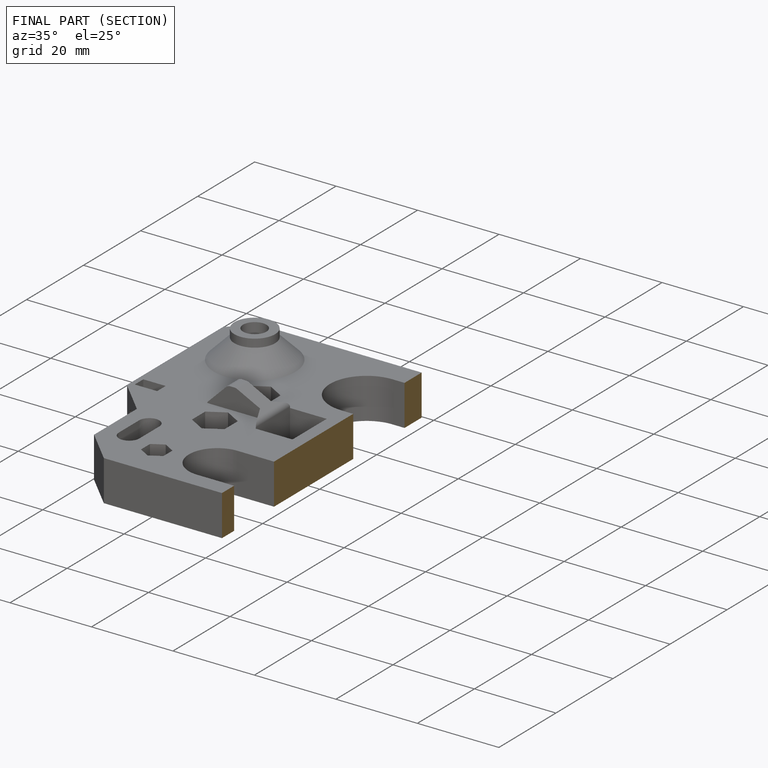
[diagram: finished part — half-section view (interior)]
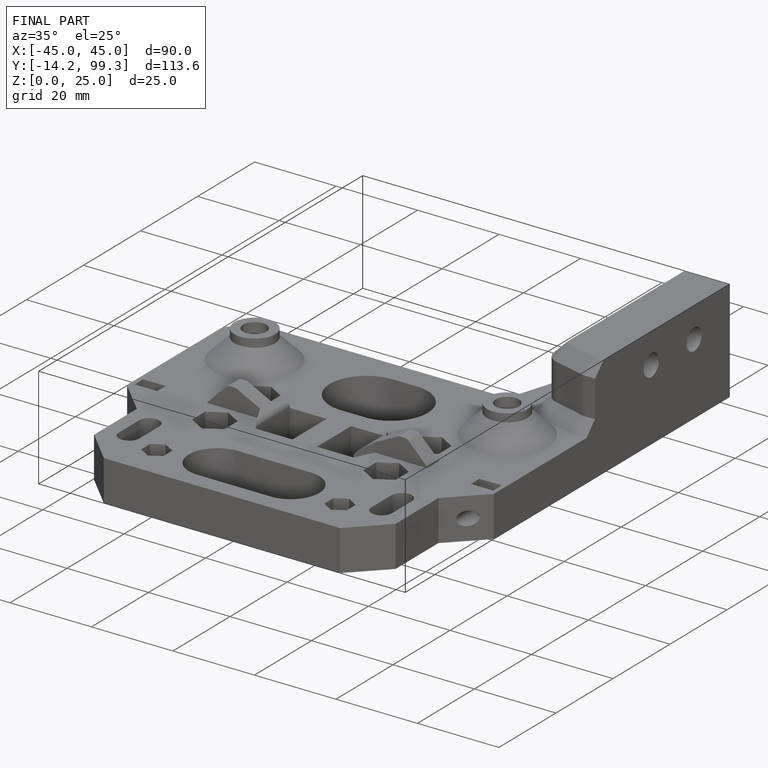
[diagram: finished part — iso view with bounding-box wireframe]
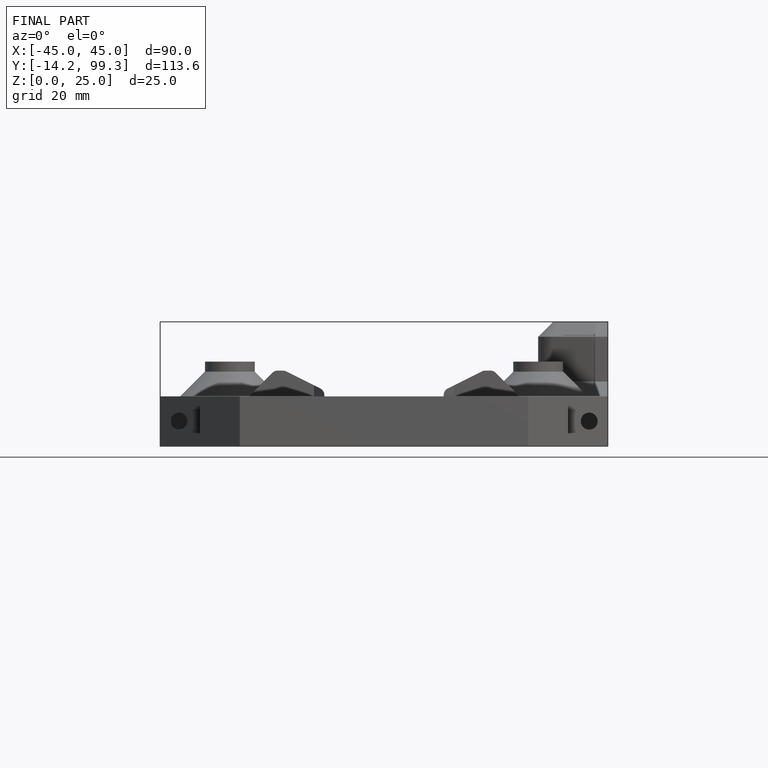
[diagram: finished part — front view with bounding-box wireframe]
